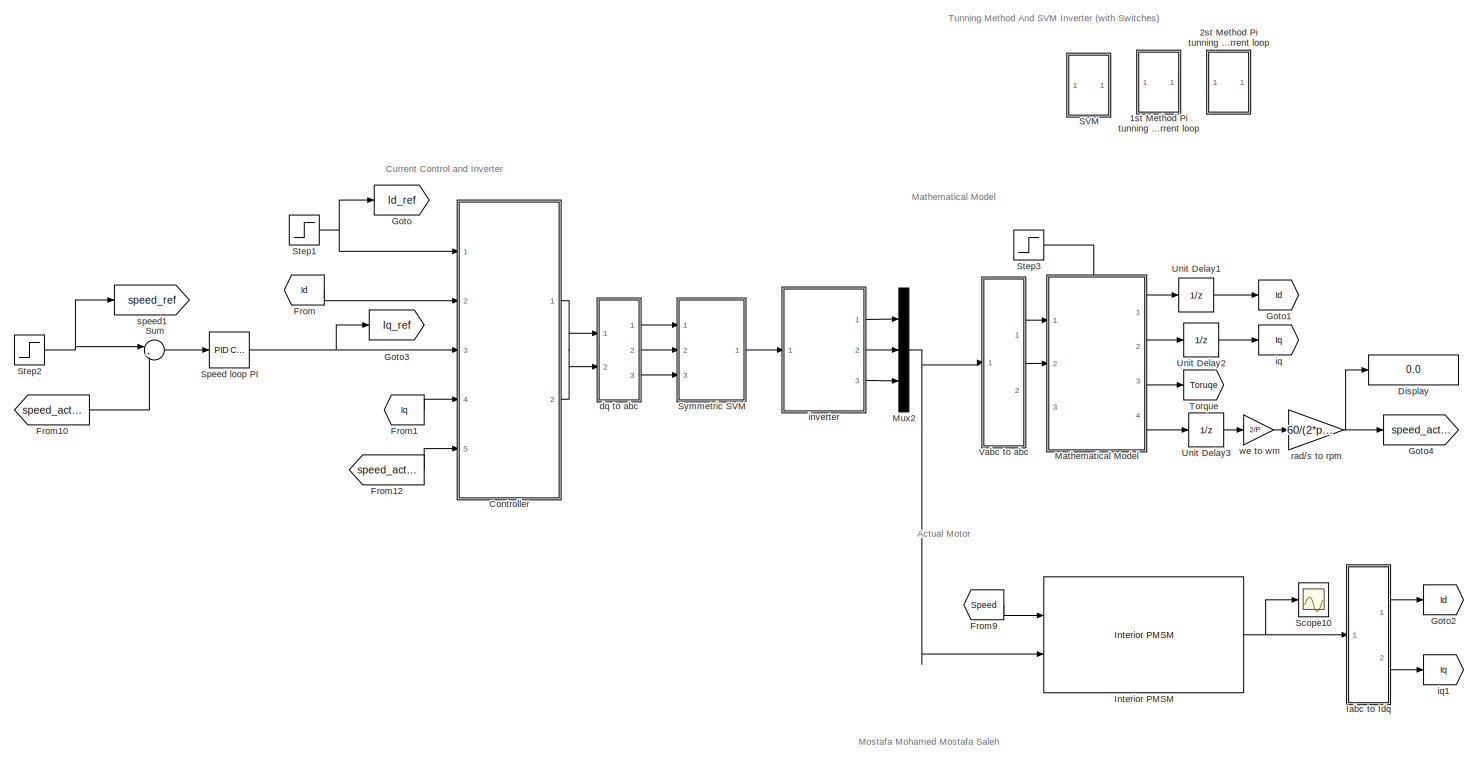
[diagram: root canvas - part 1/2, most of the canvas]
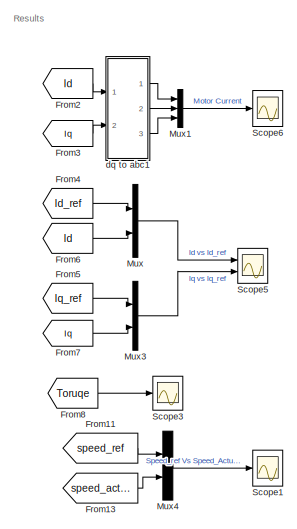
[diagram: root canvas - part 2/2, middle right region]
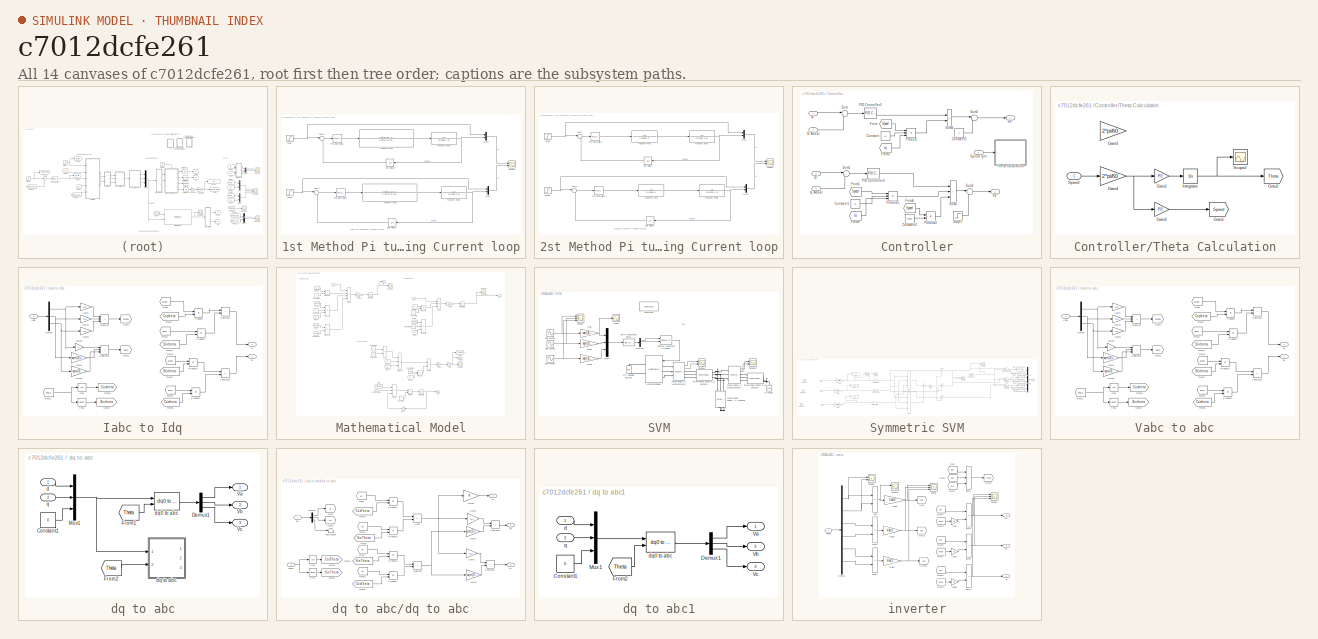
[diagram: thumbnail index - all 14 canvases of the model, root first then tree order]
MODEL slx_c7012dcfe261
KIND model
CONFIG AbsTol = auto
CONFIG EnableMultiTasking = off
CONFIG FixedStep = 1e-6
CONFIG InitFcn = Td=1/5000;\nLd=0.0057;\nLq=0.0125;\nr=1.2;\nP=4;\nLd=0.0125;\nLq=0.0057;\nPhiPM=0.123;\nVdc=700;\nB=0;\nJ=0.0027;\nfs=5000;
CONFIG MaxStep = auto
CONFIG MinStep = auto
CONFIG RelTol = 1e-3
CONFIG SampleTimeConstraint = Unconstrained
CONFIG SolverName = ode3
CONFIG StartTime = 0.0
CONFIG StopTime = 1
BLOCK [SubSystem] 1st Method Pi tunning Current loop
  Commented = on
  Ports = []
  RequestExecContextInheritance = off
BLOCK [Mux] 1st Method Pi tunning Current loop/Mux2
  DisplayOption = bar
  Inputs = 2
  Ports = [2, 1]
BLOCK [Mux] 1st Method Pi tunning Current loop/Mux3
  DisplayOption = bar
  Inputs = 2
  Ports = [2, 1]
BLOCK [Reference] 1st Method Pi tunning Current loop/PID Controller5  REF=pid_lib/PID Controller
  Ports = [1, 1]
  SourceBlock = pid_lib/PID Controller
  SourceProductBaseCode = SL
  SourceType = PID 1dof
BLOCK [Reference] 1st Method Pi tunning Current loop/PID Controller6  REF=pid_lib/PID Controller
  Ports = [1, 1]
  SourceBlock = pid_lib/PID Controller
  SourceProductBaseCode = SL
  SourceType = PID 1dof
BLOCK [Scope] 1st Method Pi tunning Current loop/Scope3
  Floating = off
  NumInputPorts = 2
  Ports = [2]
  ScopeSpecificationString = Simulink.scopes.TimeScopeBlockCfg('CurrentConfiguration', extmgr.ConfigurationSet(extmgr.Configuration('Core','General UI',true,'FigureColor',[1 1 1]),extmgr.Configuration('Core','Source UI',true),extmgr.Configuration('Sources','WiredSimulink',true),extmgr.Configuration('Visuals','Time Domain',true,'SerializedDisplays',{struct('MinYLimReal','0.6934','MaxYLimReal','1.10818','YLabelReal','','MinYLim...<+2587ch>
BLOCK [Step] 1st Method Pi tunning Current loop/Step
  SampleTime = 0
  Time = 0.1
BLOCK [Step] 1st Method Pi tunning Current loop/Step1
  SampleTime = 0
  Time = 0.1
BLOCK [Sum] 1st Method Pi tunning Current loop/Sum2
  Inputs = |+-
  Ports = [2, 1]
BLOCK [Sum] 1st Method Pi tunning Current loop/Sum3
  Inputs = |+-
  Ports = [2, 1]
BLOCK [TransferFcn] 1st Method Pi tunning Current loop/Transfer Fcn1
  Denominator = [(Td^2)/12 Td/2 1]
  Numerator = [(Td^2)/12 -Td/2 1]
BLOCK [TransferFcn] 1st Method Pi tunning Current loop/Transfer Fcn2
  Denominator = [(Td^2)/12 Td/2 1]
  Numerator = [(Td^2)/12 -Td/2 1]
BLOCK [TransferFcn] 1st Method Pi tunning Current loop/Transfer Fcn3
  Denominator = [0.0057 1.2]
BLOCK [TransferFcn] 1st Method Pi tunning Current loop/Transfer Fcn5
  Denominator = [0.0125 1.2]
BLOCK [UnitDelay] 1st Method Pi tunning Current loop/Unit Delay2
  HasFrameUpgradeWarning = on
  NameLocation = top
  SampleTime = -1
BLOCK [UnitDelay] 1st Method Pi tunning Current loop/Unit Delay3
  HasFrameUpgradeWarning = on
  SampleTime = -1
BLOCK [SubSystem] 2st Method Pi tunning Current loop
  Commented = on
  Ports = []
  RequestExecContextInheritance = off
BLOCK [Mux] 2st Method Pi tunning Current loop/Mux1
  DisplayOption = bar
  Inputs = 2
  Ports = [2, 1]
BLOCK [Mux] 2st Method Pi tunning Current loop/Mux4
  DisplayOption = bar
  Inputs = 2
  Ports = [2, 1]
BLOCK [Reference] 2st Method Pi tunning Current loop/PID Controller1  REF=pid_lib/PID Controller
  Ports = [1, 1]
  SourceBlock = pid_lib/PID Controller
  SourceProductBaseCode = SL
  SourceType = PID 1dof
BLOCK [Reference] 2st Method Pi tunning Current loop/PID Controller2  REF=pid_lib/PID Controller
  Ports = [1, 1]
  SourceBlock = pid_lib/PID Controller
  SourceProductBaseCode = SL
  SourceType = PID 1dof
BLOCK [Scope] 2st Method Pi tunning Current loop/Scope1
  Floating = off
  NumInputPorts = 2
  Ports = [2]
  ScopeSpecificationString = Simulink.scopes.TimeScopeBlockCfg('CurrentConfiguration', extmgr.ConfigurationSet(extmgr.Configuration('Core','General UI',true,'FigureColor',[1 1 1]),extmgr.Configuration('Core','Source UI',true),extmgr.Configuration('Sources','WiredSimulink',true,'DataLoggingVariableName','ScopeData12'),extmgr.Configuration('Visuals','Time Domain',true,'SerializedDisplays',{struct('MinYLimReal','0.84359','MaxYLi...<+2630ch>
BLOCK [Step] 2st Method Pi tunning Current loop/Step2
  SampleTime = 0
  Time = 0.1
BLOCK [Step] 2st Method Pi tunning Current loop/Step3
  SampleTime = 0
  Time = 0.1
BLOCK [Sum] 2st Method Pi tunning Current loop/Sum1
  Inputs = |+-
  Ports = [2, 1]
BLOCK [Sum] 2st Method Pi tunning Current loop/Sum4
  Inputs = |+-
  Ports = [2, 1]
BLOCK [TransferFcn] 2st Method Pi tunning Current loop/Transfer Fcn1
  Denominator = [1/5000 1]
BLOCK [TransferFcn] 2st Method Pi tunning Current loop/Transfer Fcn3
  Denominator = [0.0057 1.2]
BLOCK [TransferFcn] 2st Method Pi tunning Current loop/Transfer Fcn5
  Denominator = [0.0125 1.2]
BLOCK [TransferFcn] 2st Method Pi tunning Current loop/Transfer Fcn7
  Denominator = [1/5000 1]
BLOCK [UnitDelay] 2st Method Pi tunning Current loop/Unit Delay1
  HasFrameUpgradeWarning = on
  NameLocation = top
  SampleTime = -1
BLOCK [UnitDelay] 2st Method Pi tunning Current loop/Unit Delay4
  HasFrameUpgradeWarning = on
  SampleTime = -1
BLOCK [SubSystem] Controller
  Ports = [5, 2]
  RequestExecContextInheritance = off
BLOCK [Constant] Controller/Constant
  Value = Lq
BLOCK [Constant] Controller/Constant1
  Value = Ld
BLOCK [Constant] Controller/Constant2
  Value = PhiPM
BLOCK [Constant] Controller/Constant3
  Value = 0
BLOCK [From] Controller/From
  GotoTag = Speed
  TagVisibility = global
BLOCK [From] Controller/From1
  GotoTag = Speed
  TagVisibility = global
BLOCK [From] Controller/From3
  GotoTag = Iq
  TagVisibility = global
BLOCK [From] Controller/From5
  GotoTag = Id
BLOCK [From] Controller/From6
  GotoTag = Speed
  TagVisibility = global
BLOCK [Inport] Controller/Id Actual 
  Port = 2
BLOCK [Inport] Controller/Id*
BLOCK [Inport] Controller/Iq Actual 
  Port = 4
BLOCK [Inport] Controller/Iq*
  Port = 3
BLOCK [Reference] Controller/PID Controller2  REF=pid_lib/PID Controller
  Ports = [1, 1]
  SourceBlock = pid_lib/PID Controller
  SourceProductBaseCode = SL
  SourceType = PID 1dof
BLOCK [Reference] Controller/PID Controller4  REF=pid_lib/PID Controller
  Ports = [1, 1]
  SourceBlock = pid_lib/PID Controller
  SourceProductBaseCode = SL
  SourceType = PID 1dof
BLOCK [Product] Controller/Product
  Inputs = 3
  Ports = [3, 1]
BLOCK [Product] Controller/Product1
  Inputs = 3
  Ports = [3, 1]
BLOCK [Product] Controller/Product2
  Ports = [2, 1]
BLOCK [Inport] Controller/Speed rpm
  Port = 5
BLOCK [Step] Controller/Step1
  After = 0
  SampleTime = 0
  Time = 0.3
BLOCK [Sum] Controller/Sum
  Inputs = |+-
  Ports = [2, 1]
BLOCK [Sum] Controller/Sum1
  Inputs = |+-
  Ports = [2, 1]
BLOCK [Sum] Controller/Sum2
  Inputs = |++
  Ports = [2, 1]
BLOCK [Sum] Controller/Sum3
  Inputs = |++
  Ports = [2, 1]
BLOCK [Sum] Controller/Sum4
  IconShape = rectangular
  Inputs = +-
  Ports = [2, 1]
BLOCK [Sum] Controller/Sum5
  IconShape = rectangular
  Inputs = +++
  Ports = [3, 1]
BLOCK [SubSystem] Controller/Theta Calculation
  Ports = [1]
  RequestExecContextInheritance = off
BLOCK [Gain] Controller/Theta Calculation/Gain1
  Gain = P/2
BLOCK [Gain] Controller/Theta Calculation/Gain2
  Gain = P/2
BLOCK [Gain] Controller/Theta Calculation/Gain3
  Gain = 2*pi/60
BLOCK [Gain] Controller/Theta Calculation/Gain4
  Gain = 2*pi/60
BLOCK [Goto] Controller/Theta Calculation/Goto1
  GotoTag = Speed
  TagVisibility = global
BLOCK [Goto] Controller/Theta Calculation/Goto2
  GotoTag = Theta
  TagVisibility = global
BLOCK [Integrator] Controller/Theta Calculation/Integrator
  Ports = [1, 1]
BLOCK [Scope] Controller/Theta Calculation/Scope2
  Floating = off
  NumInputPorts = 1
  Ports = [1]
  ScopeSpecificationString = Simulink.scopes.TimeScopeBlockCfg('CurrentConfiguration', extmgr.ConfigurationSet(extmgr.Configuration('Core','General UI',true),extmgr.Configuration('Core','Source UI',true),extmgr.Configuration('Sources','WiredSimulink',true,'DataLoggingVariableName','ScopeData4'),extmgr.Configuration('Visuals','Time Domain',true,'SerializedDisplays',{struct('MinYLimReal','123.44494','MaxYLimReal','123.85611','Y...<+1459ch>
BLOCK [Inport] Controller/Theta Calculation/Speed
BLOCK [Outport] Controller/Vd*
BLOCK [Outport] Controller/Vq*
  Port = 2
BLOCK [Display] Display
  Decimation = 1
  Ports = [1]
BLOCK [From] From
  GotoTag = Id
BLOCK [From] From1
  GotoTag = Iq
  TagVisibility = global
BLOCK [From] From10
  GotoTag = speed_actual
BLOCK [From] From11
  GotoTag = speed_ref
  TagVisibility = global
BLOCK [From] From12
  GotoTag = speed_actual
BLOCK [From] From13
  GotoTag = speed_actual
BLOCK [From] From2
  GotoTag = Id
BLOCK [From] From3
  GotoTag = Iq
  TagVisibility = global
BLOCK [From] From4
  GotoTag = Id_ref
BLOCK [From] From5
  GotoTag = Iq_ref
BLOCK [From] From6
  GotoTag = Id
BLOCK [From] From7
  GotoTag = Iq
  TagVisibility = global
BLOCK [From] From8
  GotoTag = Toruqe
  TagVisibility = global
BLOCK [From] From9
  Commented = on
  GotoTag = Speed
  TagVisibility = global
BLOCK [Goto] Goto
  GotoTag = Id_ref
BLOCK [Goto] Goto1
  GotoTag = Id
BLOCK [Goto] Goto2
  Commented = on
  GotoTag = Id
BLOCK [Goto] Goto3
  GotoTag = Iq_ref
BLOCK [Goto] Goto4
  GotoTag = speed_actual
BLOCK [SubSystem] Iabc to Idq
  Commented = on
  Ports = [1, 2]
  RequestExecContextInheritance = off
BLOCK [Trigonometry] Iabc to Idq/Cos
  Operator = cos
  Ports = [1, 1]
BLOCK [Trigonometry] Iabc to Idq/Cos1
  Ports = [1, 1]
BLOCK [Demux] Iabc to Idq/Demux
  Outputs = 3
  Ports = [1, 3]
BLOCK [From] Iabc to Idq/From
  GotoTag = alpha
BLOCK [From] Iabc to Idq/From1
  GotoTag = Theta
  TagVisibility = global
BLOCK [From] Iabc to Idq/From2
  GotoTag = beta
BLOCK [From] Iabc to Idq/From3
  GotoTag = alpha
BLOCK [From] Iabc to Idq/From4
  GotoTag = beta
BLOCK [From] Iabc to Idq/From5
  GotoTag = Costheta
BLOCK [From] Iabc to Idq/From6
  GotoTag = Sintheta
BLOCK [From] Iabc to Idq/From7
  GotoTag = Costheta
BLOCK [From] Iabc to Idq/From8
  GotoTag = Sintheta
BLOCK [Gain] Iabc to Idq/Gain
  Gain = 2/3
BLOCK [Gain] Iabc to Idq/Gain1
  Gain = -1/3
BLOCK [Gain] Iabc to Idq/Gain2
  Gain = -1/3
BLOCK [Gain] Iabc to Idq/Gain3
  Gain = 0
BLOCK [Gain] Iabc to Idq/Gain4
  Gain = sqrt(3)/3
BLOCK [Gain] Iabc to Idq/Gain5
  Gain = -sqrt(3)/3
BLOCK [Goto] Iabc to Idq/Goto
  GotoTag = alpha
BLOCK [Goto] Iabc to Idq/Goto1
  GotoTag = beta
BLOCK [Goto] Iabc to Idq/Goto2
  GotoTag = Sintheta
BLOCK [Goto] Iabc to Idq/Goto3
  GotoTag = Costheta
BLOCK [Inport] Iabc to Idq/Iabc
BLOCK [Outport] Iabc to Idq/Id
BLOCK [Outport] Iabc to Idq/Iq
  Port = 2
BLOCK [Product] Iabc to Idq/Product
  Ports = [2, 1]
BLOCK [Product] Iabc to Idq/Product1
  Ports = [2, 1]
BLOCK [Product] Iabc to Idq/Product2
  Ports = [2, 1]
BLOCK [Product] Iabc to Idq/Product3
  Ports = [2, 1]
BLOCK [Sum] Iabc to Idq/Subtract
  IconShape = rectangular
  Inputs = +++
  Ports = [3, 1]
BLOCK [Sum] Iabc to Idq/Subtract1
  IconShape = rectangular
  Inputs = +++
  Ports = [3, 1]
BLOCK [Sum] Iabc to Idq/Subtract2
  IconShape = rectangular
  Ports = [2, 1]
BLOCK [Sum] Iabc to Idq/Subtract3
  IconShape = rectangular
  Inputs = -+
  Ports = [2, 1]
BLOCK [Reference] Interior PMSM  REF=autolibpmsminterior/Interior PMSM
  Commented = on
  Ports = [2, 3]
  SourceBlock = autolibpmsminterior/Interior PMSM
  SourceProductBaseCode = PW,MT,VE,VP
  SourceType = Interior PMSM
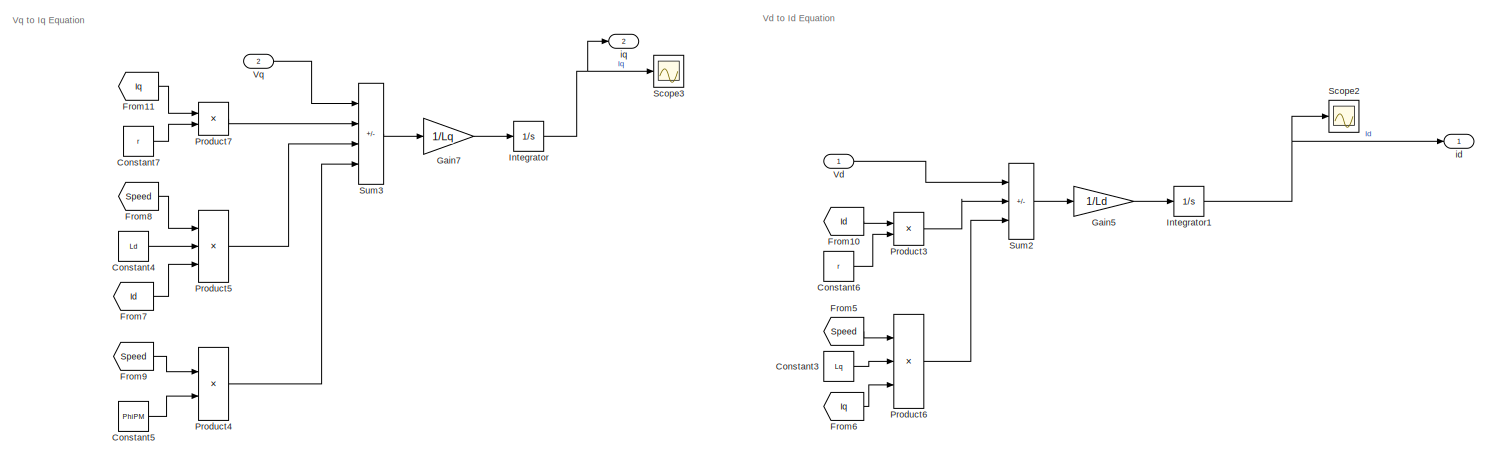
[diagram: Mathematical Model - part 1/2, full width, top band]
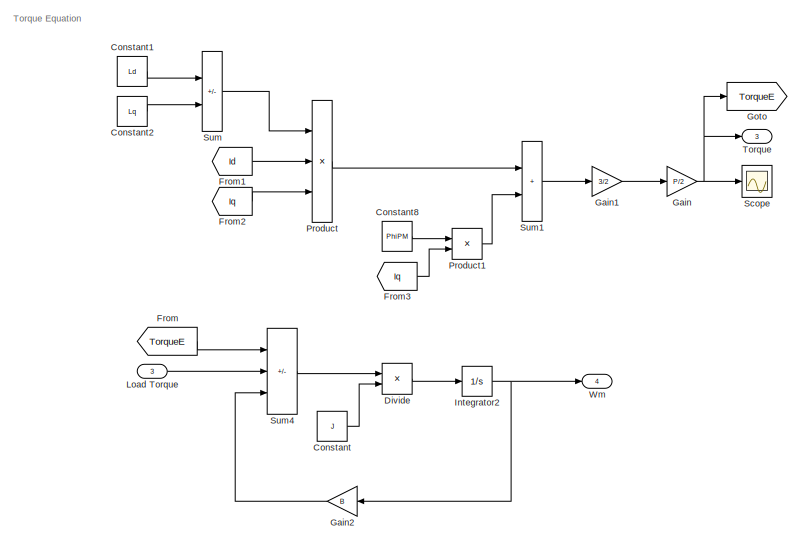
[diagram: Mathematical Model - part 2/2, bottom center region]
BLOCK [SubSystem] Mathematical Model
  PortSchema = {"entries":[{"content":{"sides":[{"content":{"connectorIds":["In1","In2"]},"type":"ConnectorPlacement.EquallySpacedRectSide","uuid":"051f3cf9-9be1-4106-b38d-66cc7393fb99"},{"content":{"connectorIds":["Out1","Out2","Out3","Out4"],"side":"RIGHT"},"type":"ConnectorPlacement.EquallySpacedRectSide","uuid":"0ae6f8d8-defd-4982-a857-4d094ecd69f7"},{"content":{"connectorIds":["In3"],"side":"TOP"},"type":"C...<+272ch>
  Ports = [3, 4]
  RequestExecContextInheritance = off
BLOCK [Constant] Mathematical Model/Constant
  Value = J
BLOCK [Constant] Mathematical Model/Constant1
  Value = Ld
BLOCK [Constant] Mathematical Model/Constant2
  Value = Lq
BLOCK [Constant] Mathematical Model/Constant3
  Value = Lq
BLOCK [Constant] Mathematical Model/Constant4
  Value = Ld
BLOCK [Constant] Mathematical Model/Constant5
  Value = PhiPM
BLOCK [Constant] Mathematical Model/Constant6
  Value = r
BLOCK [Constant] Mathematical Model/Constant7
  Value = r
BLOCK [Constant] Mathematical Model/Constant8
  Value = PhiPM
BLOCK [Product] Mathematical Model/Divide
  Inputs = */
  Ports = [2, 1]
BLOCK [From] Mathematical Model/From
  GotoTag = TorqueE
BLOCK [From] Mathematical Model/From1
  GotoTag = Id
BLOCK [From] Mathematical Model/From10
  GotoTag = Id
BLOCK [From] Mathematical Model/From11
  GotoTag = Iq
  TagVisibility = global
BLOCK [From] Mathematical Model/From2
  GotoTag = Iq
  TagVisibility = global
BLOCK [From] Mathematical Model/From3
  GotoTag = Iq
  TagVisibility = global
BLOCK [From] Mathematical Model/From5
  GotoTag = Speed
  TagVisibility = global
BLOCK [From] Mathematical Model/From6
  GotoTag = Iq
  TagVisibility = global
BLOCK [From] Mathematical Model/From7
  GotoTag = Id
BLOCK [From] Mathematical Model/From8
  GotoTag = Speed
  TagVisibility = global
BLOCK [From] Mathematical Model/From9
  GotoTag = Speed
  TagVisibility = global
BLOCK [Gain] Mathematical Model/Gain
  Gain = P/2
BLOCK [Gain] Mathematical Model/Gain1
  Gain = 3/2
BLOCK [Gain] Mathematical Model/Gain2
  Gain = B
  NameLocation = top
BLOCK [Gain] Mathematical Model/Gain5
  Gain = 1/Ld
BLOCK [Gain] Mathematical Model/Gain7
  Gain = 1/Lq
BLOCK [Goto] Mathematical Model/Goto
  GotoTag = TorqueE
BLOCK [Integrator] Mathematical Model/Integrator
  Ports = [1, 1]
BLOCK [Integrator] Mathematical Model/Integrator1
  Ports = [1, 1]
BLOCK [Integrator] Mathematical Model/Integrator2
  Ports = [1, 1]
BLOCK [Inport] Mathematical Model/Load Torque
  Port = 3
BLOCK [Product] Mathematical Model/Product
  Inputs = 3
  Ports = [3, 1]
BLOCK [Product] Mathematical Model/Product1
  Ports = [2, 1]
BLOCK [Product] Mathematical Model/Product3
  Ports = [2, 1]
BLOCK [Product] Mathematical Model/Product4
  Ports = [2, 1]
BLOCK [Product] Mathematical Model/Product5
  Inputs = 3
  Ports = [3, 1]
BLOCK [Product] Mathematical Model/Product6
  Inputs = 3
  Ports = [3, 1]
BLOCK [Product] Mathematical Model/Product7
  Ports = [2, 1]
BLOCK [Scope] Mathematical Model/Scope
  Floating = off
  NumInputPorts = 1
  Ports = [1]
  ScopeSpecificationString = Simulink.scopes.TimeScopeBlockCfg('CurrentConfiguration', extmgr.ConfigurationSet(extmgr.Configuration('Core','General UI',true),extmgr.Configuration('Core','Source UI',true),extmgr.Configuration('Sources','WiredSimulink',true,'DataLoggingVariableName','ScopeData1'),extmgr.Configuration('Visuals','Time Domain',true,'SerializedDisplays',{struct('MinYLimReal','1.64769','MaxYLimReal','1.74749','YLabe...<+1438ch>
BLOCK [Scope] Mathematical Model/Scope2
  Floating = off
  NumInputPorts = 1
  Ports = [1]
  ScopeSpecificationString = Simulink.scopes.TimeScopeBlockCfg('CurrentConfiguration', extmgr.ConfigurationSet(extmgr.Configuration('Core','General UI',true,'FigureColor',[1 1 1]),extmgr.Configuration('Core','Source UI',true),extmgr.Configuration('Sources','WiredSimulink',true,'DataLoggingVariableName','ScopeData5'),extmgr.Configuration('Visuals','Time Domain',true,'SerializedDisplays',{struct('MinYLimReal','-37.51698','MaxYL...<+1564ch>
BLOCK [Scope] Mathematical Model/Scope3
  Floating = off
  NumInputPorts = 1
  Ports = [1]
  ScopeSpecificationString = Simulink.scopes.TimeScopeBlockCfg('CurrentConfiguration', extmgr.ConfigurationSet(extmgr.Configuration('Core','General UI',true,'FigureColor',[1 1 1]),extmgr.Configuration('Core','Source UI',true),extmgr.Configuration('Sources','WiredSimulink',true,'DataLoggingVariableName','ScopeData6'),extmgr.Configuration('Visuals','Time Domain',true,'SerializedDisplays',{struct('MinYLimReal','-50.73465','MaxYL...<+1562ch>
BLOCK [Sum] Mathematical Model/Sum
  IconShape = rectangular
  Inputs = +-
  Ports = [2, 1]
BLOCK [Sum] Mathematical Model/Sum1
  IconShape = rectangular
  Ports = [2, 1]
BLOCK [Sum] Mathematical Model/Sum2
  IconShape = rectangular
  Inputs = +-+
  Ports = [3, 1]
BLOCK [Sum] Mathematical Model/Sum3
  IconShape = rectangular
  Inputs = +---
  Ports = [4, 1]
BLOCK [Sum] Mathematical Model/Sum4
  IconShape = rectangular
  Inputs = +--
  Ports = [3, 1]
BLOCK [Outport] Mathematical Model/Torque
  Port = 3
BLOCK [Inport] Mathematical Model/Vd
BLOCK [Inport] Mathematical Model/Vq
  Port = 2
BLOCK [Outport] Mathematical Model/Wm
  Port = 4
BLOCK [Outport] Mathematical Model/id
BLOCK [Outport] Mathematical Model/iq
  Port = 2
BLOCK [Mux] Mux
  DisplayOption = bar
  Inputs = 2
  Ports = [2, 1]
BLOCK [Mux] Mux1
  DisplayOption = bar
  Inputs = 3
  Ports = [3, 1]
BLOCK [Mux] Mux2
  DisplayOption = bar
  Inputs = 3
  Ports = [3, 1]
BLOCK [Mux] Mux3
  DisplayOption = bar
  Inputs = 2
  Ports = [2, 1]
BLOCK [Mux] Mux4
  DisplayOption = bar
  Inputs = 2
  Ports = [2, 1]
BLOCK [SubSystem] SVM
  Commented = on
  Ports = []
  RequestExecContextInheritance = off
BLOCK [Reference] SVM/DC Voltage Source1  REF=spsDCVoltageSourceLib/DC Voltage Source
  NameLocation = right
  Ports = [0, 0, 0, 0, 0, 1, 1]
  SourceBlock = spsDCVoltageSourceLib/DC Voltage Source
  SourceProductBaseCode = PS
  SourceType = DC Voltage Source
BLOCK [Demux] SVM/Demux1
  Outputs = 3
  Ports = [1, 3]
BLOCK [Gain] SVM/Gain
  Gain = sqrt(3)/Vdc
BLOCK [Gain] SVM/Gain1
  Gain = sqrt(3)/Vdc
BLOCK [Gain] SVM/Gain2
  Gain = sqrt(3)/Vdc
BLOCK [Reference] SVM/Ground1  REF=spsGroundLib/Ground
  NameLocation = right
  Ports = [0, 0, 0, 0, 0, 1]
  SourceBlock = spsGroundLib/Ground
  SourceProductBaseCode = PS
  SourceType = Ground
BLOCK [Mux] SVM/Mux1
  DisplayOption = bar
  Inputs = 3
  Ports = [3, 1]
BLOCK [Reference] SVM/SVPWM Generator (2-Level)1  REF=spsSVPWMGenerator2LevelLib/SVPWM Generator
(2-Level)
  Ports = [2, 1]
  SourceBlock = spsSVPWMGenerator2LevelLib/SVPWM Generator\n(2-Level)
  SourceProductBaseCode = PS
  SourceType = SVPWM Generator (2-Level)
BLOCK [Scope] SVM/Scope
  Floating = off
  NumInputPorts = 1
  Ports = [1]
  ScopeSpecificationString = Simulink.scopes.TimeScopeBlockCfg('CurrentConfiguration', extmgr.ConfigurationSet(extmgr.Configuration('Core','General UI',true),extmgr.Configuration('Core','Source UI',true),extmgr.Configuration('Sources','WiredSimulink',true,'DataLoggingVariableName','ScopeData1'),extmgr.Configuration('Visuals','Time Domain',true,'SerializedDisplays',{struct('MinYLimReal','-1.00049','MaxYLimReal','1.00049','YLab...<+1409ch>
BLOCK [Scope] SVM/Scope10
  Floating = off
  NumInputPorts = 2
  Ports = [2]
  ScopeSpecificationString = Simulink.scopes.TimeScopeBlockCfg('CurrentConfiguration', extmgr.ConfigurationSet(extmgr.Configuration('Core','General UI',true),extmgr.Configuration('Core','Source UI',true),extmgr.Configuration('Sources','WiredSimulink',true,'DataLoggingVariableName','ScopeData2'),extmgr.Configuration('Visuals','Time Domain',true,'SerializedDisplays',{struct('MinYLimReal','-461.95738','MaxYLimReal','396.20532','...<+2245ch>
BLOCK [Scope] SVM/Scope8
  Floating = off
  NumInputPorts = 3
  Ports = [3]
  ScopeSpecificationString = Simulink.scopes.TimeScopeBlockCfg('CurrentConfiguration', extmgr.ConfigurationSet(extmgr.Configuration('Core','General UI',true,'FigureColor',[1 1 1]),extmgr.Configuration('Core','Source UI',true),extmgr.Configuration('Sources','WiredSimulink',true,'DataLoggingVariableName','ScopeData3'),extmgr.Configuration('Visuals','Time Domain',true,'SerializedDisplays',{struct('MinYLimReal','-312.5','MaxYLimR...<+1842ch>
BLOCK [Scope] SVM/Scope9
  Floating = off
  NumInputPorts = 2
  Ports = [2]
  ScopeSpecificationString = Simulink.scopes.TimeScopeBlockCfg('CurrentConfiguration', extmgr.ConfigurationSet(extmgr.Configuration('Core','General UI',true),extmgr.Configuration('Core','Source UI',true),extmgr.Configuration('Sources','WiredSimulink',true,'DataLoggingVariableName','ScopeData4'),extmgr.Configuration('Visuals','Time Domain',true,'SerializedDisplays',{struct('MinYLimReal','326.82554','MaxYLimReal','339.19785','Y...<+2242ch>
BLOCK [Sin] SVM/Sine Wave1
  Amplitude = 250
  Frequency = 100*pi
  Ports = [0, 1]
  SampleTime = 0
BLOCK [Sin] SVM/Sine Wave2
  Amplitude = 250
  Frequency = 100*pi
  Phase = -2*pi/3
  Ports = [0, 1]
  SampleTime = 0
BLOCK [Sin] SVM/Sine Wave3
  Amplitude = 250
  Frequency = 100*pi
  Phase = 2*pi/3
  Ports = [0, 1]
  SampleTime = 0
BLOCK [Reference] SVM/Three-Phase Series RLC Branch3  REF=spsThreePhaseSeriesRLCBranchLib/Three-Phase
Series RLC Branch
  AttributesFormatString = \n
  Ports = [0, 0, 0, 0, 0, 3, 3]
  SourceBlock = spsThreePhaseSeriesRLCBranchLib/Three-Phase\nSeries RLC Branch
  SourceProductBaseCode = PS
  SourceType = Three-Phase Series RLC Branch
BLOCK [Reference] SVM/Three-Phase Series RLC Branch4  REF=spsThreePhaseSeriesRLCBranchLib/Three-Phase
Series RLC Branch
  AttributesFormatString = \n
  Ports = [0, 0, 0, 0, 0, 3, 3]
  SourceBlock = spsThreePhaseSeriesRLCBranchLib/Three-Phase\nSeries RLC Branch
  SourceProductBaseCode = PS
  SourceType = Three-Phase Series RLC Branch
BLOCK [Reference] SVM/Three-Phase Series RLC Branch5  REF=spsThreePhaseSeriesRLCBranchLib/Three-Phase
Series RLC Branch
  AttributesFormatString = \n
  NameLocation = left
  Ports = [0, 0, 0, 0, 0, 3, 3]
  SourceBlock = spsThreePhaseSeriesRLCBranchLib/Three-Phase\nSeries RLC Branch
  SourceProductBaseCode = PS
  SourceType = Three-Phase Series RLC Branch
BLOCK [Reference] SVM/Three-Phase V-I Measurement2  REF=spsThreePhaseVIMeasurementLib/Three-Phase
V-I Measurement
  Ports = [0, 2, 0, 0, 0, 3, 3]
  SourceBlock = spsThreePhaseVIMeasurementLib/Three-Phase\nV-I Measurement
  SourceProductBaseCode = PS
  SourceType = Three-Phase VI Measurement
BLOCK [Reference] SVM/Three-Phase V-I Measurement3  REF=spsThreePhaseVIMeasurementLib/Three-Phase
V-I Measurement
  Ports = [0, 2, 0, 0, 0, 3, 3]
  SourceBlock = spsThreePhaseVIMeasurementLib/Three-Phase\nV-I Measurement
  SourceProductBaseCode = PS
  SourceType = Three-Phase VI Measurement
BLOCK [Reference] SVM/Universal Bridge1  REF=spsUniversalBridgeLib/Universal Bridge
  Ports = [1, 0, 0, 0, 0, 3, 2]
  SourceBlock = spsUniversalBridgeLib/Universal Bridge
  SourceProductBaseCode = PS
  SourceType = Universal Bridge
BLOCK [Reference] SVM/abc to Alpha-Beta-Zero1  REF=spsabctoAlphaBetaZeroLib/abc to
Alpha-Beta-Zero
  Ports = [1, 1]
  SourceBlock = spsabctoAlphaBetaZeroLib/abc to\nAlpha-Beta-Zero
  SourceProductBaseCode = PS
  SourceType = abc to Alpha-Beta-Zero Transformation
BLOCK [Reference] SVM/powergui  REF=spspowerguiLib/powergui
  Ports = []
  Priority = 1
  SourceBlock = spspowerguiLib/powergui
  SourceProductBaseCode = PS
  SourceType = PSB option menu block
BLOCK [Scope] Scope1
  Floating = off
  NumInputPorts = 1
  Ports = [1]
  ScopeSpecificationString = Simulink.scopes.TimeScopeBlockCfg('CurrentConfiguration', extmgr.ConfigurationSet(extmgr.Configuration('Core','General UI',true,'FigureColor',[1 1 1]),extmgr.Configuration('Core','Source UI',true),extmgr.Configuration('Sources','WiredSimulink',true,'DataLoggingVariableName','ScopeData1'),extmgr.Configuration('Visuals','Time Domain',true,'SerializedDisplays',{struct('MinYLimReal','-125.16063','MaxY...<+1855ch>
BLOCK [Scope] Scope10
  Commented = on
  Floating = off
  NumInputPorts = 1
  Ports = [1]
  ScopeSpecificationString = Simulink.scopes.TimeScopeBlockCfg('CurrentConfiguration', extmgr.ConfigurationSet(extmgr.Configuration('Core','General UI',true,'FigureColor',[1 1 1]),extmgr.Configuration('Core','Source UI',true),extmgr.Configuration('Sources','WiredSimulink',true,'DataLoggingVariableName','ScopeData3'),extmgr.Configuration('Visuals','Time Domain',true,'SerializedDisplays',{struct('MinYLimReal','-1.18532','MaxYLi...<+1580ch>
BLOCK [Scope] Scope3
  Floating = off
  NumInputPorts = 1
  Ports = [1]
  ScopeSpecificationString = Simulink.scopes.TimeScopeBlockCfg('CurrentConfiguration', extmgr.ConfigurationSet(extmgr.Configuration('Core','General UI',true,'FigureColor',[1 1 1]),extmgr.Configuration('Core','Source UI',true),extmgr.Configuration('Sources','WiredSimulink',true,'DataLoggingVariableName','ScopeData7'),extmgr.Configuration('Visuals','Time Domain',true,'SerializedDisplays',{struct('MinYLimReal','-0.94057','MaxYLi...<+1558ch>
BLOCK [Scope] Scope5
  Floating = off
  NumInputPorts = 2
  Ports = [2]
  ScopeSpecificationString = Simulink.scopes.TimeScopeBlockCfg('CurrentConfiguration', extmgr.ConfigurationSet(extmgr.Configuration('Core','General UI',true,'FigureColor',[1 1 1]),extmgr.Configuration('Core','Source UI',true),extmgr.Configuration('Sources','WiredSimulink',true,'DataLoggingVariableName','ScopeData13'),extmgr.Configuration('Visuals','Time Domain',true,'SerializedDisplays',{struct('MinYLimReal','-1.01215','MaxYL...<+2711ch>
BLOCK [Scope] Scope6
  Floating = off
  NumInputPorts = 1
  Ports = [1]
  ScopeSpecificationString = Simulink.scopes.TimeScopeBlockCfg('CurrentConfiguration', extmgr.ConfigurationSet(extmgr.Configuration('Core','General UI',true,'FigureColor',[1 1 1]),extmgr.Configuration('Core','Source UI',true),extmgr.Configuration('Sources','WiredSimulink',true,'DataLoggingVariableName','ScopeData2'),extmgr.Configuration('Visuals','Time Domain',true,'SerializedDisplays',{struct('MinYLimReal','-6.6026','MaxYLim...<+1771ch>
BLOCK [Reference] Speed loop PI  REF=pid_lib/PID Controller
  Ports = [1, 1]
  SourceBlock = pid_lib/PID Controller
  SourceProductBaseCode = SL
  SourceType = PID 1dof
BLOCK [Step] Step1
  After = 0
  SampleTime = 0
  Time = 0.2
BLOCK [Step] Step2
  After = 1000
  SampleTime = 0
  Time = 0.2
BLOCK [Step] Step3
  After = 5
  SampleTime = 0
  Time = 0.6
BLOCK [Sum] Sum
  Inputs = |+-
  Ports = [2, 1]
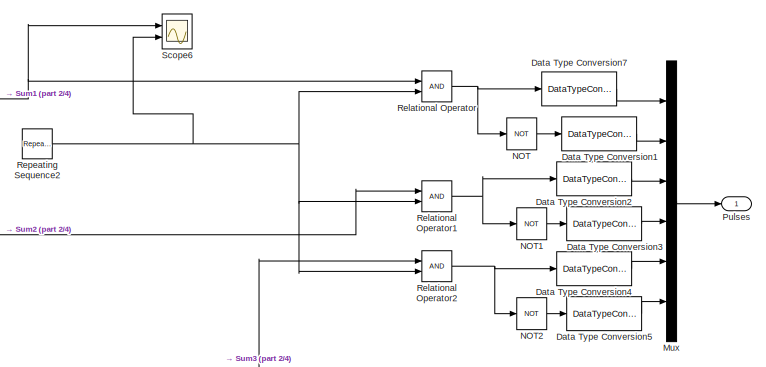
[diagram: Symmetric SVM - part 1/4, top right region]
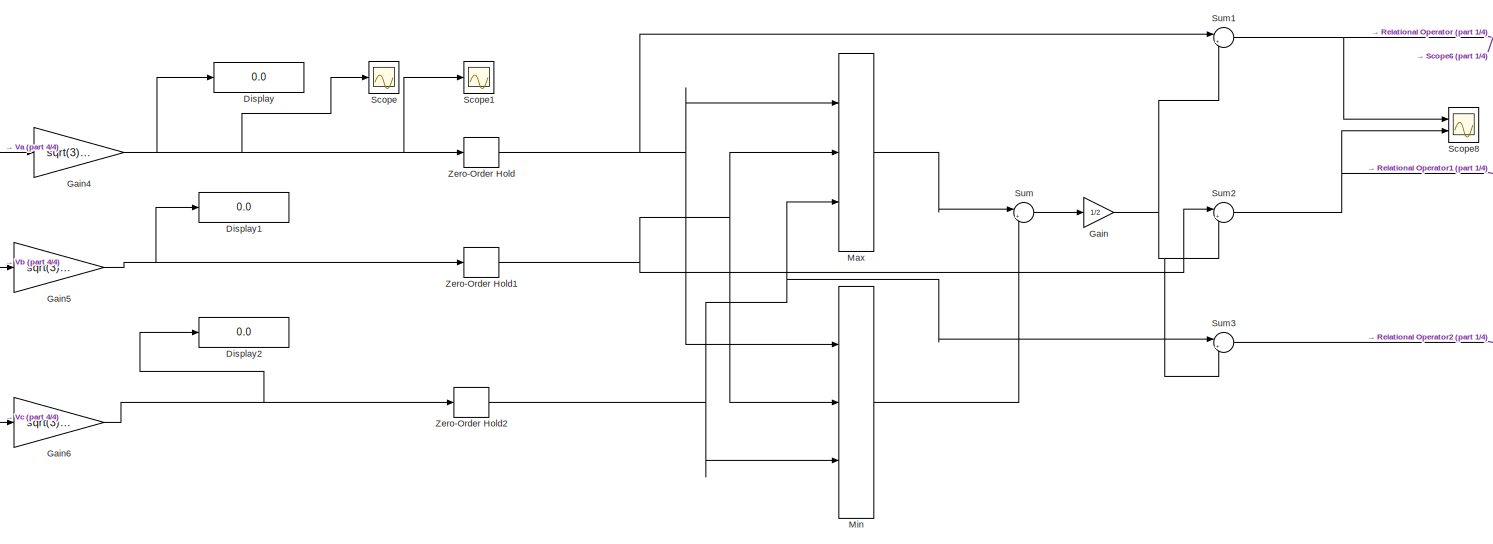
[diagram: Symmetric SVM - part 2/4, center side, full height]
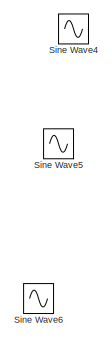
[diagram: Symmetric SVM - part 3/4, middle left region]
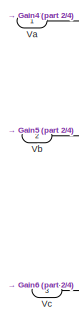
[diagram: Symmetric SVM - part 4/4, middle left region]
BLOCK [SubSystem] Symmetric SVM
  Ports = [3, 1]
  RequestExecContextInheritance = off
BLOCK [DataTypeConversion] Symmetric SVM/Data Type Conversion1
  RndMeth = Floor
  SaturateOnIntegerOverflow = off
BLOCK [DataTypeConversion] Symmetric SVM/Data Type Conversion2
  RndMeth = Floor
  SaturateOnIntegerOverflow = off
BLOCK [DataTypeConversion] Symmetric SVM/Data Type Conversion3
  RndMeth = Floor
  SaturateOnIntegerOverflow = off
BLOCK [DataTypeConversion] Symmetric SVM/Data Type Conversion4
  RndMeth = Floor
  SaturateOnIntegerOverflow = off
BLOCK [DataTypeConversion] Symmetric SVM/Data Type Conversion5
  RndMeth = Floor
  SaturateOnIntegerOverflow = off
BLOCK [DataTypeConversion] Symmetric SVM/Data Type Conversion7
  RndMeth = Floor
  SaturateOnIntegerOverflow = off
BLOCK [Display] Symmetric SVM/Display
  Decimation = 1
  Ports = [1]
BLOCK [Display] Symmetric SVM/Display1
  Decimation = 1
  Ports = [1]
BLOCK [Display] Symmetric SVM/Display2
  Decimation = 1
  Ports = [1]
BLOCK [Gain] Symmetric SVM/Gain
  Gain = 1/2
BLOCK [Gain] Symmetric SVM/Gain4
  Gain = sqrt(3)/Vdc
BLOCK [Gain] Symmetric SVM/Gain5
  Gain = sqrt(3)/Vdc
BLOCK [Gain] Symmetric SVM/Gain6
  Gain = sqrt(3)/Vdc
BLOCK [MinMax] Symmetric SVM/Max
  Function = max
  Inputs = 3
  Ports = [3, 1]
BLOCK [MinMax] Symmetric SVM/Min
  Inputs = 3
  Ports = [3, 1]
BLOCK [Mux] Symmetric SVM/Mux
  DisplayOption = bar
  Inputs = 6
  Ports = [6, 1]
BLOCK [Logic] Symmetric SVM/NOT
  AllPortsSameDT = off
  IconShape = distinctive
  Operator = NOT
  OutDataTypeStr = boolean
  Ports = [1, 1]
BLOCK [Logic] Symmetric SVM/NOT1
  AllPortsSameDT = off
  IconShape = distinctive
  Operator = NOT
  OutDataTypeStr = boolean
  Ports = [1, 1]
BLOCK [Logic] Symmetric SVM/NOT2
  AllPortsSameDT = off
  IconShape = distinctive
  Operator = NOT
  OutDataTypeStr = boolean
  Ports = [1, 1]
BLOCK [Outport] Symmetric SVM/Pulses
BLOCK [RelationalOperator] Symmetric SVM/Relational Operator
  InputSameDT = off
  OutDataTypeStr = boolean
  Ports = [2, 1]
  RndMeth = Simplest
BLOCK [RelationalOperator] Symmetric SVM/Relational Operator1
  InputSameDT = off
  OutDataTypeStr = boolean
  Ports = [2, 1]
  RndMeth = Simplest
BLOCK [RelationalOperator] Symmetric SVM/Relational Operator2
  InputSameDT = off
  OutDataTypeStr = boolean
  Ports = [2, 1]
  RndMeth = Simplest
BLOCK [Reference] Symmetric SVM/Repeating Sequence2  REF=simulink/Sources/Repeating
Sequence
  Ports = [0, 1]
  SourceBlock = simulink/Sources/Repeating\nSequence
  SourceProductBaseCode = SL
  SourceType = Repeating table
BLOCK [Scope] Symmetric SVM/Scope
  Floating = off
  NumInputPorts = 1
  Ports = [1]
  ScopeSpecificationString = Simulink.scopes.TimeScopeBlockCfg('CurrentConfiguration', extmgr.ConfigurationSet(extmgr.Configuration('Core','General UI',true),extmgr.Configuration('Core','Source UI',true),extmgr.Configuration('Sources','WiredSimulink',true,'DataLoggingVariableName','ScopeData10'),extmgr.Configuration('Visuals','Time Domain',true,'SerializedDisplays',{struct('MinYLimReal','-1.00049','MaxYLimReal','1.00049','YLa...<+1442ch>
BLOCK [Scope] Symmetric SVM/Scope1
  Floating = off
  NumInputPorts = 1
  Ports = [1]
  ScopeSpecificationString = Simulink.scopes.TimeScopeBlockCfg('CurrentConfiguration', extmgr.ConfigurationSet(extmgr.Configuration('Core','General UI',true),extmgr.Configuration('Core','Source UI',true),extmgr.Configuration('Sources','WiredSimulink',true,'DataLoggingVariableName','ScopeData11'),extmgr.Configuration('Visuals','Time Domain',true,'SerializedDisplays',{struct('MinYLimReal','-0.0001','MaxYLimReal','0.00008','YLab...<+1436ch>
BLOCK [Scope] Symmetric SVM/Scope6
  Floating = off
  NumInputPorts = 2
  Ports = [2]
  ScopeSpecificationString = Simulink.scopes.TimeScopeBlockCfg('CurrentConfiguration', extmgr.ConfigurationSet(extmgr.Configuration('Core','General UI',true),extmgr.Configuration('Core','Source UI',true),extmgr.Configuration('Sources','WiredSimulink',true,'DataLoggingVariableName','ScopeData8'),extmgr.Configuration('Visuals','Time Domain',true,'SerializedDisplays',{struct('MinYLimReal','-1.25','MaxYLimReal','1.25','YLabelReal...<+1463ch>
BLOCK [Scope] Symmetric SVM/Scope8
  Floating = off
  NumInputPorts = 2
  Ports = [2]
  ScopeSpecificationString = Simulink.scopes.TimeScopeBlockCfg('CurrentConfiguration', extmgr.ConfigurationSet(extmgr.Configuration('Core','General UI',true),extmgr.Configuration('Core','Source UI',true),extmgr.Configuration('Sources','WiredSimulink',true,'DataLoggingVariableName','ScopeData9'),extmgr.Configuration('Visuals','Time Domain',true,'SerializedDisplays',{struct('MinYLimReal','-3.19104','MaxYLimReal','3.19012','YLab...<+2002ch>
BLOCK [Sin] Symmetric SVM/Sine Wave4
  Amplitude = 250
  Frequency = 100*pi
  Ports = [0, 1]
  SampleTime = 0
BLOCK [Sin] Symmetric SVM/Sine Wave5
  Amplitude = 250
  Frequency = 100*pi
  Phase = -2*pi/3
  Ports = [0, 1]
  SampleTime = 0
BLOCK [Sin] Symmetric SVM/Sine Wave6
  Amplitude = 250
  Frequency = 100*pi
  Phase = 2*pi/3
  Ports = [0, 1]
  SampleTime = 0
BLOCK [Sum] Symmetric SVM/Sum
  Inputs = |++
  Ports = [2, 1]
BLOCK [Sum] Symmetric SVM/Sum1
  Inputs = |+-
  Ports = [2, 1]
BLOCK [Sum] Symmetric SVM/Sum2
  Inputs = |+-
  Ports = [2, 1]
BLOCK [Sum] Symmetric SVM/Sum3
  Inputs = |+-
  Ports = [2, 1]
BLOCK [Inport] Symmetric SVM/Va
BLOCK [Inport] Symmetric SVM/Vb
  Port = 2
BLOCK [Inport] Symmetric SVM/Vc
  Port = 3
BLOCK [ZeroOrderHold] Symmetric SVM/Zero-Order Hold
  SampleTime = 1/fs
BLOCK [ZeroOrderHold] Symmetric SVM/Zero-Order Hold1
  SampleTime = 1/fs
BLOCK [ZeroOrderHold] Symmetric SVM/Zero-Order Hold2
  SampleTime = 1/fs
BLOCK [Goto] Torque
  GotoTag = Toruqe
  TagVisibility = global
BLOCK [UnitDelay] Unit Delay1
  HasFrameUpgradeWarning = on
  SampleTime = -1
BLOCK [UnitDelay] Unit Delay2
  HasFrameUpgradeWarning = on
  SampleTime = -1
BLOCK [UnitDelay] Unit Delay3
  HasFrameUpgradeWarning = on
  SampleTime = -1
BLOCK [SubSystem] Vabc to abc
  Ports = [1, 2]
  RequestExecContextInheritance = off
BLOCK [Trigonometry] Vabc to abc/Cos
  Operator = cos
  Ports = [1, 1]
BLOCK [Trigonometry] Vabc to abc/Cos1
  Ports = [1, 1]
BLOCK [Demux] Vabc to abc/Demux
  Outputs = 3
  Ports = [1, 3]
BLOCK [From] Vabc to abc/From
  GotoTag = alpha
BLOCK [From] Vabc to abc/From1
  GotoTag = Theta
  TagVisibility = global
BLOCK [From] Vabc to abc/From2
  GotoTag = beta
BLOCK [From] Vabc to abc/From3
  GotoTag = alpha
BLOCK [From] Vabc to abc/From4
  GotoTag = beta
BLOCK [From] Vabc to abc/From5
  GotoTag = Costheta
BLOCK [From] Vabc to abc/From6
  GotoTag = Sintheta
BLOCK [From] Vabc to abc/From7
  GotoTag = Costheta
BLOCK [From] Vabc to abc/From8
  GotoTag = Sintheta
BLOCK [Gain] Vabc to abc/Gain
  Gain = 2/3
BLOCK [Gain] Vabc to abc/Gain1
  Gain = -1/3
BLOCK [Gain] Vabc to abc/Gain2
  Gain = -1/3
BLOCK [Gain] Vabc to abc/Gain3
  Gain = 0
BLOCK [Gain] Vabc to abc/Gain4
  Gain = sqrt(3)/3
BLOCK [Gain] Vabc to abc/Gain5
  Gain = -sqrt(3)/3
BLOCK [Goto] Vabc to abc/Goto
  GotoTag = alpha
BLOCK [Goto] Vabc to abc/Goto1
  GotoTag = beta
BLOCK [Goto] Vabc to abc/Goto2
  GotoTag = Sintheta
BLOCK [Goto] Vabc to abc/Goto3
  GotoTag = Costheta
BLOCK [Product] Vabc to abc/Product
  Ports = [2, 1]
BLOCK [Product] Vabc to abc/Product1
  Ports = [2, 1]
BLOCK [Product] Vabc to abc/Product2
  Ports = [2, 1]
BLOCK [Product] Vabc to abc/Product3
  Ports = [2, 1]
BLOCK [Sum] Vabc to abc/Subtract
  IconShape = rectangular
  Inputs = +++
  Ports = [3, 1]
BLOCK [Sum] Vabc to abc/Subtract1
  IconShape = rectangular
  Inputs = +++
  Ports = [3, 1]
BLOCK [Sum] Vabc to abc/Subtract2
  IconShape = rectangular
  Ports = [2, 1]
BLOCK [Sum] Vabc to abc/Subtract3
  IconShape = rectangular
  Inputs = -+
  Ports = [2, 1]
BLOCK [Inport] Vabc to abc/Vabc
BLOCK [Outport] Vabc to abc/vd
BLOCK [Outport] Vabc to abc/vq
  Port = 2
BLOCK [SubSystem] dq to abc
  Ports = [2, 3]
  RequestExecContextInheritance = off
BLOCK [Constant] dq to abc/Constant1
  Value = 0
BLOCK [Demux] dq to abc/Demux1
  Outputs = 3
  Ports = [1, 3]
BLOCK [From] dq to abc/From1
  GotoTag = Theta
  TagVisibility = global
BLOCK [From] dq to abc/From2
  Commented = on
  GotoTag = Theta
  TagVisibility = global
BLOCK [Mux] dq to abc/Mux1
  DisplayOption = bar
  Inputs = 3
  Ports = [3, 1]
BLOCK [Outport] dq to abc/Va
BLOCK [Outport] dq to abc/Vb
  Port = 2
BLOCK [Outport] dq to abc/Vc
  Port = 3
BLOCK [Inport] dq to abc/d
BLOCK [SubSystem] dq to abc/dq to abc
  Commented = on
  Ports = [2, 3]
  RequestExecContextInheritance = off
BLOCK [Sum] dq to abc/dq to abc/Add1
  IconShape = rectangular
  Inputs = +-
  Ports = [2, 1]
BLOCK [Trigonometry] dq to abc/dq to abc/Cos1
  Operator = cos
  Ports = [1, 1]
BLOCK [Demux] dq to abc/dq to abc/Demux
  Outputs = 3
  Ports = [1, 3]
BLOCK [From] dq to abc/dq to abc/From
  GotoTag = vd
BLOCK [From] dq to abc/dq to abc/From1
  GotoTag = vq
BLOCK [From] dq to abc/dq to abc/From2
  GotoTag = CosTheta
BLOCK [From] dq to abc/dq to abc/From3
  GotoTag = CosTheta
BLOCK [From] dq to abc/dq to abc/From4
  GotoTag = SinTheta
BLOCK [From] dq to abc/dq to abc/From5
  GotoTag = SinTheta
BLOCK [From] dq to abc/dq to abc/From6
  GotoTag = vq
BLOCK [From] dq to abc/dq to abc/From7
  GotoTag = vd
BLOCK [Gain] dq to abc/dq to abc/Gain1
  Gain = -1/2
BLOCK [Gain] dq to abc/dq to abc/Gain2
  Gain = -1/2
BLOCK [Gain] dq to abc/dq to abc/Gain3
  Gain = sqrt(3)/2
BLOCK [Gain] dq to abc/dq to abc/Gain4
  Gain = -sqrt(3)/2
BLOCK [Gain] dq to abc/dq to abc/Gain5
BLOCK [Goto] dq to abc/dq to abc/Goto
  GotoTag = vd
BLOCK [Goto] dq to abc/dq to abc/Goto1
  GotoTag = vq
BLOCK [Goto] dq to abc/dq to abc/Goto2
  GotoTag = SinTheta
BLOCK [Goto] dq to abc/dq to abc/Goto3
  GotoTag = CosTheta
BLOCK [Product] dq to abc/dq to abc/Product1
  Ports = [2, 1]
BLOCK [Product] dq to abc/dq to abc/Product2
  Ports = [2, 1]
BLOCK [Product] dq to abc/dq to abc/Product3
  Ports = [2, 1]
BLOCK [Product] dq to abc/dq to abc/Product4
  Ports = [2, 1]
BLOCK [Trigonometry] dq to abc/dq to abc/Sin1
  Ports = [1, 1]
BLOCK [Sum] dq to abc/dq to abc/Subtract
  IconShape = rectangular
  Ports = [2, 1]
BLOCK [Sum] dq to abc/dq to abc/Subtract1
  IconShape = rectangular
  Ports = [2, 1]
BLOCK [Sum] dq to abc/dq to abc/Subtract2
  IconShape = rectangular
  Ports = [2, 1]
BLOCK [Terminator] dq to abc/dq to abc/Terminator
BLOCK [Inport] dq to abc/dq to abc/Theta
  Port = 2
BLOCK [Inport] dq to abc/dq to abc/dq
BLOCK [Outport] dq to abc/dq to abc/va
BLOCK [Outport] dq to abc/dq to abc/vb
  Port = 2
BLOCK [Outport] dq to abc/dq to abc/vc
  Port = 3
BLOCK [Reference] dq to abc/dq0 to abc  REF=spsdq0toabcLib/dq0 to abc
  Ports = [2, 1]
  SourceBlock = spsdq0toabcLib/dq0 to abc
  SourceProductBaseCode = PS
  SourceType = dq0 to abc Transformation
BLOCK [Inport] dq to abc/q
  Port = 2
BLOCK [SubSystem] dq to abc1
  Ports = [2, 3]
  RequestExecContextInheritance = off
BLOCK [Constant] dq to abc1/Constant1
  Value = 0
BLOCK [Demux] dq to abc1/Demux1
  Outputs = 3
  Ports = [1, 3]
BLOCK [From] dq to abc1/From2
  GotoTag = Theta
  TagVisibility = global
BLOCK [Mux] dq to abc1/Mux1
  DisplayOption = bar
  Inputs = 3
  Ports = [3, 1]
BLOCK [Outport] dq to abc1/Va
BLOCK [Outport] dq to abc1/Vb
  Port = 2
BLOCK [Outport] dq to abc1/Vc
  Port = 3
BLOCK [Inport] dq to abc1/d
BLOCK [Reference] dq to abc1/dq0 to abc  REF=spsdq0toabcLib/dq0 to abc
  Ports = [2, 1]
  SourceBlock = spsdq0toabcLib/dq0 to abc
  SourceProductBaseCode = PS
  SourceType = dq0 to abc Transformation
BLOCK [Inport] dq to abc1/q
  Port = 2
BLOCK [SubSystem] inverter
  Ports = [1, 3]
  RequestExecContextInheritance = off
BLOCK [Demux] inverter/Demux
  Outputs = 6
  Ports = [1, 6]
BLOCK [From] inverter/From
  GotoTag = Vao
BLOCK [From] inverter/From1
  GotoTag = Vbo
BLOCK [From] inverter/From2
  GotoTag = Vco
BLOCK [From] inverter/From3
  GotoTag = Vsum
BLOCK [From] inverter/From4
  GotoTag = Vao
BLOCK [From] inverter/From5
  GotoTag = Vbo
BLOCK [From] inverter/From6
  GotoTag = Vco
BLOCK [From] inverter/From7
  GotoTag = Vsum
BLOCK [From] inverter/From9
  GotoTag = Vsum
BLOCK [Gain] inverter/Gain
  Gain = 1/3
BLOCK [Gain] inverter/Gain1
  Gain = 1/3
BLOCK [Gain] inverter/Gain2
  Gain = 1/3
BLOCK [Gain] inverter/Gain3
  Gain = Vdc/2
BLOCK [Gain] inverter/Gain4
  Gain = Vdc/2
BLOCK [Gain] inverter/Gain6
  Gain = Vdc/2
BLOCK [Goto] inverter/Goto
  GotoTag = Vao
BLOCK [Goto] inverter/Goto1
  GotoTag = Vbo
BLOCK [Goto] inverter/Goto2
  GotoTag = Vco
BLOCK [Goto] inverter/Goto3
  GotoTag = Vsum
BLOCK [Inport] inverter/Pulses
BLOCK [Scope] inverter/Scope
  Floating = off
  NumInputPorts = 3
  Ports = [3]
  ScopeSpecificationString = Simulink.scopes.TimeScopeBlockCfg('CurrentConfiguration', extmgr.ConfigurationSet(extmgr.Configuration('Core','General UI',true),extmgr.Configuration('Core','Source UI',true),extmgr.Configuration('Sources','WiredSimulink',true,'DataLoggingVariableName','ScopeData4'),extmgr.Configuration('Visuals','Time Domain',true,'SerializedDisplays',{struct('MinYLimReal','233.82269','MaxYLimReal','272.88355','Y...<+2796ch>
BLOCK [Scope] inverter/Scope1
  Floating = off
  NumInputPorts = 3
  Ports = [3]
  ScopeSpecificationString = Simulink.scopes.TimeScopeBlockCfg('CurrentConfiguration', extmgr.ConfigurationSet(extmgr.Configuration('Core','General UI',true),extmgr.Configuration('Core','Source UI',true),extmgr.Configuration('Sources','WiredSimulink',true,'DataLoggingVariableName','ScopeData5'),extmgr.Configuration('Visuals','Time Domain',true,'SerializedDisplays',{struct('MinYLimReal','360.59167','MaxYLimReal','360.69092','Y...<+2802ch>
BLOCK [Scope] inverter/Scope2
  Floating = off
  NumInputPorts = 2
  Ports = [2]
  ScopeSpecificationString = Simulink.scopes.TimeScopeBlockCfg('CurrentConfiguration', extmgr.ConfigurationSet(extmgr.Configuration('Core','General UI',true),extmgr.Configuration('Core','Source UI',true),extmgr.Configuration('Sources','WiredSimulink',true,'DataLoggingVariableName','ScopeData5'),extmgr.Configuration('Visuals','Time Domain',true,'SerializedDisplays',{struct('MinYLimReal','-0.125','MaxYLimReal','1.125','YLabelRe...<+2003ch>
BLOCK [Scope] inverter/Scope3
  Floating = off
  NumInputPorts = 2
  Ports = [2]
  ScopeSpecificationString = Simulink.scopes.TimeScopeBlockCfg('CurrentConfiguration', extmgr.ConfigurationSet(extmgr.Configuration('Core','General UI',true),extmgr.Configuration('Core','Source UI',true),extmgr.Configuration('Sources','WiredSimulink',true,'DataLoggingVariableName','ScopeData6'),extmgr.Configuration('Visuals','Time Domain',true,'SerializedDisplays',{struct('MinYLimReal','-1.25','MaxYLimReal','1.25','YLabelReal...<+1454ch>
BLOCK [Sum] inverter/Sum
  IconShape = rectangular
  Inputs = +-
  Ports = [2, 1]
BLOCK [Sum] inverter/Sum1
  IconShape = rectangular
  Inputs = +-
  Ports = [2, 1]
BLOCK [Sum] inverter/Sum2
  IconShape = rectangular
  Inputs = +-
  Ports = [2, 1]
BLOCK [Sum] inverter/Sum3
  IconShape = rectangular
  Inputs = +++
  Ports = [3, 1]
BLOCK [Sum] inverter/Sum4
  IconShape = rectangular
  Inputs = +-
  Ports = [2, 1]
BLOCK [Sum] inverter/Sum5
  IconShape = rectangular
  Inputs = +-
  Ports = [2, 1]
BLOCK [Sum] inverter/Sum6
  IconShape = rectangular
  Inputs = +-
  Ports = [2, 1]
BLOCK [Outport] inverter/Va
BLOCK [Outport] inverter/Vb
  Port = 2
BLOCK [Outport] inverter/Vc
  Port = 3
BLOCK [Goto] iq
  GotoTag = Iq
  TagVisibility = global
BLOCK [Goto] iq1
  Commented = on
  GotoTag = Iq
  TagVisibility = global
BLOCK [Gain] rad//s to rpm
  Gain = 60/(2*pi)
BLOCK [Goto] speed1
  GotoTag = speed_ref
  TagVisibility = global
BLOCK [Gain] we to wm
  Gain = 2/P
ANNOTATION (root): Mostafa Mohamed Mostafa Saleh
ANNOTATION (root): Actual Motor
ANNOTATION (root): Current Control and Inverter
ANNOTATION (root): Mathematical Model
ANNOTATION (root): Results
ANNOTATION (root): Tunning Method And SVM Inverter (with Switches)
ANNOTATION 1st Method Pi tunning Current loop: Pole zero cancelation tunning method
ANNOTATION 2st Method Pi tunning Current loop: Modulus Optimum tunning method
ANNOTATION Mathematical Model: Torque Equation
ANNOTATION Mathematical Model: Vd to Id Equation
ANNOTATION Mathematical Model: Vq to Iq Equation
ANNOTATION SVM: SVM
LINE 1st Method Pi tunning Current loop/Mux2:1 -> 1st Method Pi tunning Current loop/Scope3:1
LINE 1st Method Pi tunning Current loop/Mux3:1 -> 1st Method Pi tunning Current loop/Scope3:2
LINE 1st Method Pi tunning Current loop/PID Controller5:1 -> 1st Method Pi tunning Current loop/Transfer Fcn1:1
LINE 1st Method Pi tunning Current loop/PID Controller6:1 -> 1st Method Pi tunning Current loop/Transfer Fcn2:1
NET 1st Method Pi tunning Current loop/Step1:1 -> 1st Method Pi tunning Current loop/Mux3:1, 1st Method Pi tunning Current loop/Sum2:1
NET 1st Method Pi tunning Current loop/Step:1 -> 1st Method Pi tunning Current loop/Mux2:1, 1st Method Pi tunning Current loop/Sum3:1
LINE 1st Method Pi tunning Current loop/Sum2:1 -> 1st Method Pi tunning Current loop/PID Controller6:1
LINE 1st Method Pi tunning Current loop/Sum3:1 -> 1st Method Pi tunning Current loop/PID Controller5:1
LINE 1st Method Pi tunning Current loop/Transfer Fcn1:1 -> 1st Method Pi tunning Current loop/Transfer Fcn3:1
LINE 1st Method Pi tunning Current loop/Transfer Fcn2:1 -> 1st Method Pi tunning Current loop/Transfer Fcn5:1
NET 1st Method Pi tunning Current loop/Transfer Fcn3:1 -> 1st Method Pi tunning Current loop/Mux2:2, 1st Method Pi tunning Current loop/Unit Delay2:1
NET 1st Method Pi tunning Current loop/Transfer Fcn5:1 -> 1st Method Pi tunning Current loop/Mux3:2, 1st Method Pi tunning Current loop/Unit Delay3:1
LINE 1st Method Pi tunning Current loop/Unit Delay2:1 -> 1st Method Pi tunning Current loop/Sum3:2
LINE 1st Method Pi tunning Current loop/Unit Delay3:1 -> 1st Method Pi tunning Current loop/Sum2:2
LINE 2st Method Pi tunning Current loop/Mux1:1 -> 2st Method Pi tunning Current loop/Scope1:1
LINE 2st Method Pi tunning Current loop/Mux4:1 -> 2st Method Pi tunning Current loop/Scope1:2
LINE 2st Method Pi tunning Current loop/PID Controller1:1 -> 2st Method Pi tunning Current loop/Transfer Fcn7:1
LINE 2st Method Pi tunning Current loop/PID Controller2:1 -> 2st Method Pi tunning Current loop/Transfer Fcn1:1
NET 2st Method Pi tunning Current loop/Step2:1 -> 2st Method Pi tunning Current loop/Mux1:1, 2st Method Pi tunning Current loop/Sum4:1
NET 2st Method Pi tunning Current loop/Step3:1 -> 2st Method Pi tunning Current loop/Mux4:1, 2st Method Pi tunning Current loop/Sum1:1
LINE 2st Method Pi tunning Current loop/Sum1:1 -> 2st Method Pi tunning Current loop/PID Controller2:1
LINE 2st Method Pi tunning Current loop/Sum4:1 -> 2st Method Pi tunning Current loop/PID Controller1:1
LINE 2st Method Pi tunning Current loop/Transfer Fcn1:1 -> 2st Method Pi tunning Current loop/Transfer Fcn5:1
NET 2st Method Pi tunning Current loop/Transfer Fcn3:1 -> 2st Method Pi tunning Current loop/Mux1:2, 2st Method Pi tunning Current loop/Unit Delay1:1
NET 2st Method Pi tunning Current loop/Transfer Fcn5:1 -> 2st Method Pi tunning Current loop/Mux4:2, 2st Method Pi tunning Current loop/Unit Delay4:1
LINE 2st Method Pi tunning Current loop/Transfer Fcn7:1 -> 2st Method Pi tunning Current loop/Transfer Fcn3:1
LINE 2st Method Pi tunning Current loop/Unit Delay1:1 -> 2st Method Pi tunning Current loop/Sum4:2
LINE 2st Method Pi tunning Current loop/Unit Delay4:1 -> 2st Method Pi tunning Current loop/Sum1:2
LINE Controller/Constant1:1 -> Controller/Product1:2
LINE Controller/Constant2:1 -> Controller/Product2:2
LINE Controller/Constant3:1 -> Controller/Sum2:2
LINE Controller/Constant:1 -> Controller/Product:2
LINE Controller/From1:1 -> Controller/Product1:1
LINE Controller/From3:1 -> Controller/Product:3
LINE Controller/From5:1 -> Controller/Product1:3
LINE Controller/From6:1 -> Controller/Product2:1
LINE Controller/From:1 -> Controller/Product:1
LINE Controller/Id Actual :1 -> Controller/Sum:2
LINE Controller/Id*:1 -> Controller/Sum:1
LINE Controller/Iq Actual :1 -> Controller/Sum1:2
LINE Controller/Iq*:1 -> Controller/Sum1:1
LINE Controller/PID Controller2:1 -> Controller/Sum4:1
LINE Controller/PID Controller4:1 -> Controller/Sum5:1
LINE Controller/Product1:1 -> Controller/Sum5:2
LINE Controller/Product2:1 -> Controller/Sum5:3
LINE Controller/Product:1 -> Controller/Sum4:2
LINE Controller/Speed rpm:1 -> Controller/Theta Calculation:1
LINE Controller/Step1:1 -> Controller/Sum3:2
LINE Controller/Sum1:1 -> Controller/PID Controller4:1
LINE Controller/Sum2:1 -> Controller/Vd*:1
LINE Controller/Sum3:1 -> Controller/Vq*:1
LINE Controller/Sum4:1 -> Controller/Sum2:1
LINE Controller/Sum5:1 -> Controller/Sum3:1
LINE Controller/Sum:1 -> Controller/PID Controller2:1
LINE Controller/Theta Calculation/Gain1:1 -> Controller/Theta Calculation/Integrator:1
LINE Controller/Theta Calculation/Gain2:1 -> Controller/Theta Calculation/Goto1:1
NET Controller/Theta Calculation/Gain4:1 -> Controller/Theta Calculation/Gain1:1, Controller/Theta Calculation/Gain2:1
NET Controller/Theta Calculation/Integrator:1 -> Controller/Theta Calculation/Goto2:1, Controller/Theta Calculation/Scope2:1
LINE Controller/Theta Calculation/Speed:1 -> Controller/Theta Calculation/Gain4:1
LINE Controller:1 -> dq to abc:1
LINE Controller:2 -> dq to abc:2
LINE From10:1 -> Sum:2
LINE From11:1 -> Mux4:1
LINE From12:1 -> Controller:5
LINE From13:1 -> Mux4:2
LINE From1:1 -> Controller:4
LINE From2:1 -> dq to abc1:1
LINE From3:1 -> dq to abc1:2
LINE From4:1 -> Mux:1
LINE From5:1 -> Mux3:1
LINE From6:1 -> Mux:2
LINE From7:1 -> Mux3:2
LINE From8:1 -> Scope3:1
LINE From9:1 -> Interior PMSM:1
LINE From:1 -> Controller:2
LINE Iabc to Idq/Cos1:1 -> Iabc to Idq/Goto2:1
LINE Iabc to Idq/Cos:1 -> Iabc to Idq/Goto3:1
NET Iabc to Idq/Demux:1 -> Iabc to Idq/Gain3:1, Iabc to Idq/Gain:1
NET Iabc to Idq/Demux:2 -> Iabc to Idq/Gain1:1, Iabc to Idq/Gain4:1
NET Iabc to Idq/Demux:3 -> Iabc to Idq/Gain2:1, Iabc to Idq/Gain5:1
NET Iabc to Idq/From1:1 -> Iabc to Idq/Cos1:1, Iabc to Idq/Cos:1
LINE Iabc to Idq/From2:1 -> Iabc to Idq/Product1:1
LINE Iabc to Idq/From3:1 -> Iabc to Idq/Product3:1
LINE Iabc to Idq/From4:1 -> Iabc to Idq/Product2:1
LINE Iabc to Idq/From5:1 -> Iabc to Idq/Product2:2
LINE Iabc to Idq/From6:1 -> Iabc to Idq/Product3:2
LINE Iabc to Idq/From7:1 -> Iabc to Idq/Product:2
LINE Iabc to Idq/From8:1 -> Iabc to Idq/Product1:2
LINE Iabc to Idq/From:1 -> Iabc to Idq/Product:1
LINE Iabc to Idq/Gain1:1 -> Iabc to Idq/Subtract:2
LINE Iabc to Idq/Gain2:1 -> Iabc to Idq/Subtract:3
LINE Iabc to Idq/Gain3:1 -> Iabc to Idq/Subtract1:1
LINE Iabc to Idq/Gain4:1 -> Iabc to Idq/Subtract1:2
LINE Iabc to Idq/Gain5:1 -> Iabc to Idq/Subtract1:3
LINE Iabc to Idq/Gain:1 -> Iabc to Idq/Subtract:1
LINE Iabc to Idq/Iabc:1 -> Iabc to Idq/Demux:1
LINE Iabc to Idq/Product1:1 -> Iabc to Idq/Subtract2:2
LINE Iabc to Idq/Product2:1 -> Iabc to Idq/Subtract3:2
LINE Iabc to Idq/Product3:1 -> Iabc to Idq/Subtract3:1
LINE Iabc to Idq/Product:1 -> Iabc to Idq/Subtract2:1
LINE Iabc to Idq/Subtract1:1 -> Iabc to Idq/Goto1:1
LINE Iabc to Idq/Subtract2:1 -> Iabc to Idq/Id:1
LINE Iabc to Idq/Subtract3:1 -> Iabc to Idq/Iq:1
LINE Iabc to Idq/Subtract:1 -> Iabc to Idq/Goto:1
LINE Iabc to Idq:1 -> Goto2:1
LINE Iabc to Idq:2 -> iq1:1
NET Interior PMSM:2 -> Iabc to Idq:1, Scope10:1
LINE Mathematical Model/Constant1:1 -> Mathematical Model/Sum:1
LINE Mathematical Model/Constant2:1 -> Mathematical Model/Sum:2
LINE Mathematical Model/Constant3:1 -> Mathematical Model/Product6:2
LINE Mathematical Model/Constant4:1 -> Mathematical Model/Product5:2
LINE Mathematical Model/Constant5:1 -> Mathematical Model/Product4:2
LINE Mathematical Model/Constant6:1 -> Mathematical Model/Product3:2
LINE Mathematical Model/Constant7:1 -> Mathematical Model/Product7:2
LINE Mathematical Model/Constant8:1 -> Mathematical Model/Product1:1
LINE Mathematical Model/Constant:1 -> Mathematical Model/Divide:2
LINE Mathematical Model/Divide:1 -> Mathematical Model/Integrator2:1
LINE Mathematical Model/From10:1 -> Mathematical Model/Product3:1
LINE Mathematical Model/From11:1 -> Mathematical Model/Product7:1
LINE Mathematical Model/From1:1 -> Mathematical Model/Product:2
LINE Mathematical Model/From2:1 -> Mathematical Model/Product:3
LINE Mathematical Model/From3:1 -> Mathematical Model/Product1:2
LINE Mathematical Model/From5:1 -> Mathematical Model/Product6:1
LINE Mathematical Model/From6:1 -> Mathematical Model/Product6:3
LINE Mathematical Model/From7:1 -> Mathematical Model/Product5:3
LINE Mathematical Model/From8:1 -> Mathematical Model/Product5:1
LINE Mathematical Model/From9:1 -> Mathematical Model/Product4:1
LINE Mathematical Model/From:1 -> Mathematical Model/Sum4:1
LINE Mathematical Model/Gain1:1 -> Mathematical Model/Gain:1
LINE Mathematical Model/Gain2:1 -> Mathematical Model/Sum4:3
LINE Mathematical Model/Gain5:1 -> Mathematical Model/Integrator1:1
LINE Mathematical Model/Gain7:1 -> Mathematical Model/Integrator:1
NET Mathematical Model/Gain:1 -> Mathematical Model/Goto:1, Mathematical Model/Scope:1, Mathematical Model/Torque:1
NET Mathematical Model/Integrator1:1 -> Mathematical Model/Scope2:1, Mathematical Model/id:1
NET Mathematical Model/Integrator2:1 -> Mathematical Model/Gain2:1, Mathematical Model/Wm:1
NET Mathematical Model/Integrator:1 -> Mathematical Model/Scope3:1, Mathematical Model/iq:1
LINE Mathematical Model/Load Torque:1 -> Mathematical Model/Sum4:2
LINE Mathematical Model/Product1:1 -> Mathematical Model/Sum1:2
LINE Mathematical Model/Product3:1 -> Mathematical Model/Sum2:2
LINE Mathematical Model/Product4:1 -> Mathematical Model/Sum3:4
LINE Mathematical Model/Product5:1 -> Mathematical Model/Sum3:3
LINE Mathematical Model/Product6:1 -> Mathematical Model/Sum2:3
LINE Mathematical Model/Product7:1 -> Mathematical Model/Sum3:2
LINE Mathematical Model/Product:1 -> Mathematical Model/Sum1:1
LINE Mathematical Model/Sum1:1 -> Mathematical Model/Gain1:1
LINE Mathematical Model/Sum2:1 -> Mathematical Model/Gain5:1
LINE Mathematical Model/Sum3:1 -> Mathematical Model/Gain7:1
LINE Mathematical Model/Sum4:1 -> Mathematical Model/Divide:1
LINE Mathematical Model/Sum:1 -> Mathematical Model/Product:1
LINE Mathematical Model/Vd:1 -> Mathematical Model/Sum2:1
LINE Mathematical Model/Vq:1 -> Mathematical Model/Sum3:1
LINE Mathematical Model:1 -> Unit Delay1:1
LINE Mathematical Model:2 -> Unit Delay2:1
LINE Mathematical Model:3 -> Torque:1
LINE Mathematical Model:4 -> Unit Delay3:1
LINE Mux1:1 -> Scope6:1
NET Mux2:1 -> Interior PMSM:2, Vabc to abc:1
LINE Mux3:1 -> Scope5:2
LINE Mux4:1 -> Scope1:1
LINE Mux:1 -> Scope5:1
LINE SVM/Demux1:1 -> SVM/SVPWM Generator (2-Level)1:1
LINE SVM/Demux1:2 -> SVM/SVPWM Generator (2-Level)1:2
LINE SVM/Gain1:1 -> SVM/Mux1:2
LINE SVM/Gain2:1 -> SVM/Mux1:3
NET SVM/Gain:1 -> SVM/Mux1:1, SVM/Scope:1
LINE SVM/Mux1:1 -> SVM/abc to Alpha-Beta-Zero1:1
LINE SVM/SVPWM Generator (2-Level)1:1 -> SVM/Universal Bridge1:1
NET SVM/Sine Wave1:1 -> SVM/Gain:1, SVM/Scope8:1
NET SVM/Sine Wave2:1 -> SVM/Gain1:1, SVM/Scope8:2
NET SVM/Sine Wave3:1 -> SVM/Gain2:1, SVM/Scope8:3
LINE SVM/Three-Phase V-I Measurement2:1 -> SVM/Scope9:1
LINE SVM/Three-Phase V-I Measurement2:2 -> SVM/Scope9:2
LINE SVM/Three-Phase V-I Measurement3:1 -> SVM/Scope10:1
LINE SVM/Three-Phase V-I Measurement3:2 -> SVM/Scope10:2
LINE SVM/abc to Alpha-Beta-Zero1:1 -> SVM/Demux1:1
NET Speed loop PI:1 -> Controller:3, Goto3:1
NET Step1:1 -> Controller:1, Goto:1
NET Step2:1 -> Sum:1, speed1:1
LINE Step3:1 -> Mathematical Model:3
LINE Sum:1 -> Speed loop PI:1
LINE Symmetric SVM/Data Type Conversion1:1 -> Symmetric SVM/Mux:2
LINE Symmetric SVM/Data Type Conversion2:1 -> Symmetric SVM/Mux:3
LINE Symmetric SVM/Data Type Conversion3:1 -> Symmetric SVM/Mux:4
LINE Symmetric SVM/Data Type Conversion4:1 -> Symmetric SVM/Mux:5
LINE Symmetric SVM/Data Type Conversion5:1 -> Symmetric SVM/Mux:6
LINE Symmetric SVM/Data Type Conversion7:1 -> Symmetric SVM/Mux:1
NET Symmetric SVM/Gain4:1 -> Symmetric SVM/Display:1, Symmetric SVM/Scope1:1, Symmetric SVM/Scope:1, Symmetric SVM/Zero-Order Hold:1
NET Symmetric SVM/Gain5:1 -> Symmetric SVM/Display1:1, Symmetric SVM/Zero-Order Hold1:1
NET Symmetric SVM/Gain6:1 -> Symmetric SVM/Display2:1, Symmetric SVM/Zero-Order Hold2:1
NET Symmetric SVM/Gain:1 -> Symmetric SVM/Sum1:2, Symmetric SVM/Sum2:2, Symmetric SVM/Sum3:2
LINE Symmetric SVM/Max:1 -> Symmetric SVM/Sum:1
LINE Symmetric SVM/Min:1 -> Symmetric SVM/Sum:2
LINE Symmetric SVM/Mux:1 -> Symmetric SVM/Pulses:1
LINE Symmetric SVM/NOT1:1 -> Symmetric SVM/Data Type Conversion3:1
LINE Symmetric SVM/NOT2:1 -> Symmetric SVM/Data Type Conversion5:1
LINE Symmetric SVM/NOT:1 -> Symmetric SVM/Data Type Conversion1:1
NET Symmetric SVM/Relational Operator1:1 -> Symmetric SVM/Data Type Conversion2:1, Symmetric SVM/NOT1:1
NET Symmetric SVM/Relational Operator2:1 -> Symmetric SVM/Data Type Conversion4:1, Symmetric SVM/NOT2:1
NET Symmetric SVM/Relational Operator:1 -> Symmetric SVM/Data Type Conversion7:1, Symmetric SVM/NOT:1
NET Symmetric SVM/Repeating Sequence2:1 -> Symmetric SVM/Relational Operator1:2, Symmetric SVM/Relational Operator2:2, Symmetric SVM/Relational Operator:2, Symmetric SVM/Scope6:2
NET Symmetric SVM/Sum1:1 -> Symmetric SVM/Relational Operator:1, Symmetric SVM/Scope6:1, Symmetric SVM/Scope8:1
NET Symmetric SVM/Sum2:1 -> Symmetric SVM/Relational Operator1:1, Symmetric SVM/Scope8:2
LINE Symmetric SVM/Sum3:1 -> Symmetric SVM/Relational Operator2:1
LINE Symmetric SVM/Sum:1 -> Symmetric SVM/Gain:1
LINE Symmetric SVM/Va:1 -> Symmetric SVM/Gain4:1
LINE Symmetric SVM/Vb:1 -> Symmetric SVM/Gain5:1
LINE Symmetric SVM/Vc:1 -> Symmetric SVM/Gain6:1
NET Symmetric SVM/Zero-Order Hold1:1 -> Symmetric SVM/Max:2, Symmetric SVM/Min:2, Symmetric SVM/Sum2:1
NET Symmetric SVM/Zero-Order Hold2:1 -> Symmetric SVM/Max:3, Symmetric SVM/Min:3, Symmetric SVM/Sum3:1
NET Symmetric SVM/Zero-Order Hold:1 -> Symmetric SVM/Max:1, Symmetric SVM/Min:1, Symmetric SVM/Sum1:1
LINE Symmetric SVM:1 -> inverter:1
LINE Unit Delay1:1 -> Goto1:1
LINE Unit Delay2:1 -> iq:1
LINE Unit Delay3:1 -> we to wm:1
LINE Vabc to abc/Cos1:1 -> Vabc to abc/Goto2:1
LINE Vabc to abc/Cos:1 -> Vabc to abc/Goto3:1
NET Vabc to abc/Demux:1 -> Vabc to abc/Gain3:1, Vabc to abc/Gain:1
NET Vabc to abc/Demux:2 -> Vabc to abc/Gain1:1, Vabc to abc/Gain4:1
NET Vabc to abc/Demux:3 -> Vabc to abc/Gain2:1, Vabc to abc/Gain5:1
NET Vabc to abc/From1:1 -> Vabc to abc/Cos1:1, Vabc to abc/Cos:1
LINE Vabc to abc/From2:1 -> Vabc to abc/Product1:1
LINE Vabc to abc/From3:1 -> Vabc to abc/Product3:1
LINE Vabc to abc/From4:1 -> Vabc to abc/Product2:1
LINE Vabc to abc/From5:1 -> Vabc to abc/Product2:2
LINE Vabc to abc/From6:1 -> Vabc to abc/Product3:2
LINE Vabc to abc/From7:1 -> Vabc to abc/Product:2
LINE Vabc to abc/From8:1 -> Vabc to abc/Product1:2
LINE Vabc to abc/From:1 -> Vabc to abc/Product:1
LINE Vabc to abc/Gain1:1 -> Vabc to abc/Subtract:2
LINE Vabc to abc/Gain2:1 -> Vabc to abc/Subtract:3
LINE Vabc to abc/Gain3:1 -> Vabc to abc/Subtract1:1
LINE Vabc to abc/Gain4:1 -> Vabc to abc/Subtract1:2
LINE Vabc to abc/Gain5:1 -> Vabc to abc/Subtract1:3
LINE Vabc to abc/Gain:1 -> Vabc to abc/Subtract:1
LINE Vabc to abc/Product1:1 -> Vabc to abc/Subtract2:2
LINE Vabc to abc/Product2:1 -> Vabc to abc/Subtract3:2
LINE Vabc to abc/Product3:1 -> Vabc to abc/Subtract3:1
LINE Vabc to abc/Product:1 -> Vabc to abc/Subtract2:1
LINE Vabc to abc/Subtract1:1 -> Vabc to abc/Goto1:1
LINE Vabc to abc/Subtract2:1 -> Vabc to abc/vd:1
LINE Vabc to abc/Subtract3:1 -> Vabc to abc/vq:1
LINE Vabc to abc/Subtract:1 -> Vabc to abc/Goto:1
LINE Vabc to abc/Vabc:1 -> Vabc to abc/Demux:1
LINE Vabc to abc:1 -> Mathematical Model:1
LINE Vabc to abc:2 -> Mathematical Model:2
LINE dq to abc/Constant1:1 -> dq to abc/Mux1:3
LINE dq to abc/Demux1:1 -> dq to abc/Va:1
LINE dq to abc/Demux1:2 -> dq to abc/Vb:1
LINE dq to abc/Demux1:3 -> dq to abc/Vc:1
LINE dq to abc/From1:1 -> dq to abc/dq0 to abc:2
LINE dq to abc/From2:1 -> dq to abc/dq to abc:2
NET dq to abc/Mux1:1 -> dq to abc/dq to abc:1, dq to abc/dq0 to abc:1
LINE dq to abc/d:1 -> dq to abc/Mux1:1
NET dq to abc/dq to abc/Add1:1 -> dq to abc/dq to abc/Gain1:1, dq to abc/dq to abc/Gain2:1, dq to abc/dq to abc/Gain5:1
LINE dq to abc/dq to abc/Cos1:1 -> dq to abc/dq to abc/Goto3:1
LINE dq to abc/dq to abc/Demux:1 -> dq to abc/dq to abc/Goto:1
LINE dq to abc/dq to abc/Demux:2 -> dq to abc/dq to abc/Goto1:1
LINE dq to abc/dq to abc/Demux:3 -> dq to abc/dq to abc/Terminator:1
LINE dq to abc/dq to abc/From1:1 -> dq to abc/dq to abc/Product3:1
LINE dq to abc/dq to abc/From2:1 -> dq to abc/dq to abc/Product1:2
LINE dq to abc/dq to abc/From3:1 -> dq to abc/dq to abc/Product2:2
LINE dq to abc/dq to abc/From4:1 -> dq to abc/dq to abc/Product4:2
LINE dq to abc/dq to abc/From5:1 -> dq to abc/dq to abc/Product3:2
LINE dq to abc/dq to abc/From6:1 -> dq to abc/dq to abc/Product1:1
LINE dq to abc/dq to abc/From7:1 -> dq to abc/dq to abc/Product4:1
LINE dq to abc/dq to abc/From:1 -> dq to abc/dq to abc/Product2:1
LINE dq to abc/dq to abc/Gain1:1 -> dq to abc/dq to abc/Subtract2:1
LINE dq to abc/dq to abc/Gain2:1 -> dq to abc/dq to abc/Subtract1:1
LINE dq to abc/dq to abc/Gain3:1 -> dq to abc/dq to abc/Subtract1:2
LINE dq to abc/dq to abc/Gain4:1 -> dq to abc/dq to abc/Subtract2:2
LINE dq to abc/dq to abc/Gain5:1 -> dq to abc/dq to abc/va:1
LINE dq to abc/dq to abc/Product1:1 -> dq to abc/dq to abc/Subtract:2
LINE dq to abc/dq to abc/Product2:1 -> dq to abc/dq to abc/Add1:1
LINE dq to abc/dq to abc/Product3:1 -> dq to abc/dq to abc/Add1:2
LINE dq to abc/dq to abc/Product4:1 -> dq to abc/dq to abc/Subtract:1
LINE dq to abc/dq to abc/Sin1:1 -> dq to abc/dq to abc/Goto2:1
LINE dq to abc/dq to abc/Subtract1:1 -> dq to abc/dq to abc/vb:1
LINE dq to abc/dq to abc/Subtract2:1 -> dq to abc/dq to abc/vc:1
NET dq to abc/dq to abc/Subtract:1 -> dq to abc/dq to abc/Gain3:1, dq to abc/dq to abc/Gain4:1
NET dq to abc/dq to abc/Theta:1 -> dq to abc/dq to abc/Cos1:1, dq to abc/dq to abc/Sin1:1
LINE dq to abc/dq to abc/dq:1 -> dq to abc/dq to abc/Demux:1
LINE dq to abc/dq0 to abc:1 -> dq to abc/Demux1:1
LINE dq to abc/q:1 -> dq to abc/Mux1:2
LINE dq to abc1/Constant1:1 -> dq to abc1/Mux1:3
LINE dq to abc1/Demux1:1 -> dq to abc1/Va:1
LINE dq to abc1/Demux1:2 -> dq to abc1/Vb:1
LINE dq to abc1/Demux1:3 -> dq to abc1/Vc:1
LINE dq to abc1/From2:1 -> dq to abc1/dq0 to abc:2
LINE dq to abc1/Mux1:1 -> dq to abc1/dq0 to abc:1
LINE dq to abc1/d:1 -> dq to abc1/Mux1:1
LINE dq to abc1/dq0 to abc:1 -> dq to abc1/Demux1:1
LINE dq to abc1/q:1 -> dq to abc1/Mux1:2
LINE dq to abc1:1 -> Mux1:1
LINE dq to abc1:2 -> Mux1:2
LINE dq to abc1:3 -> Mux1:3
LINE dq to abc:1 -> Symmetric SVM:1
LINE dq to abc:2 -> Symmetric SVM:2
LINE dq to abc:3 -> Symmetric SVM:3
NET inverter/Demux:1 -> inverter/Scope2:1, inverter/Sum:1
NET inverter/Demux:2 -> inverter/Scope2:2, inverter/Sum:2
LINE inverter/Demux:3 -> inverter/Sum1:1
LINE inverter/Demux:4 -> inverter/Sum1:2
LINE inverter/Demux:5 -> inverter/Sum2:1
LINE inverter/Demux:6 -> inverter/Sum2:2
LINE inverter/From1:1 -> inverter/Sum3:2
LINE inverter/From2:1 -> inverter/Sum3:3
LINE inverter/From3:1 -> inverter/Gain:1
LINE inverter/From4:1 -> inverter/Sum4:1
LINE inverter/From5:1 -> inverter/Sum5:1
LINE inverter/From6:1 -> inverter/Sum6:1
LINE inverter/From7:1 -> inverter/Gain1:1
LINE inverter/From9:1 -> inverter/Gain2:1
LINE inverter/From:1 -> inverter/Sum3:1
LINE inverter/Gain1:1 -> inverter/Sum5:2
LINE inverter/Gain2:1 -> inverter/Sum6:2
NET inverter/Gain3:1 -> inverter/Goto1:1, inverter/Scope:2
NET inverter/Gain4:1 -> inverter/Goto2:1, inverter/Scope:3
NET inverter/Gain6:1 -> inverter/Goto:1, inverter/Scope:1
LINE inverter/Gain:1 -> inverter/Sum4:2
LINE inverter/Pulses:1 -> inverter/Demux:1
LINE inverter/Sum1:1 -> inverter/Gain3:1
LINE inverter/Sum2:1 -> inverter/Gain4:1
LINE inverter/Sum3:1 -> inverter/Goto3:1
NET inverter/Sum4:1 -> inverter/Scope1:1, inverter/Va:1
NET inverter/Sum5:1 -> inverter/Scope1:2, inverter/Vb:1
NET inverter/Sum6:1 -> inverter/Scope1:3, inverter/Vc:1
NET inverter/Sum:1 -> inverter/Gain6:1, inverter/Scope3:1
LINE inverter:1 -> Mux2:1
LINE inverter:2 -> Mux2:2
LINE inverter:3 -> Mux2:3
NET rad//s to rpm:1 -> Display:1, Goto4:1
LINE we to wm:1 -> rad//s to rpm:1
PLINE SVM/DC Voltage Source1:LConn1 -- SVM/Universal Bridge1:RConn2
PLINE SVM/DC Voltage Source1:RConn1 -- SVM/Universal Bridge1:RConn1
PNET net1: SVM/Ground1:LConn1 -- SVM/Three-Phase Series RLC Branch3:RConn1 -- SVM/Three-Phase Series RLC Branch3:RConn2 -- SVM/Three-Phase Series RLC Branch3:RConn3
PLINE SVM/Three-Phase Series RLC Branch3:LConn1 -- SVM/Three-Phase V-I Measurement3:RConn1
PLINE SVM/Three-Phase Series RLC Branch3:LConn2 -- SVM/Three-Phase V-I Measurement3:RConn2
PLINE SVM/Three-Phase Series RLC Branch3:LConn3 -- SVM/Three-Phase V-I Measurement3:RConn3
PLINE SVM/Three-Phase Series RLC Branch4:LConn1 -- SVM/Three-Phase V-I Measurement2:RConn1
PLINE SVM/Three-Phase Series RLC Branch4:LConn2 -- SVM/Three-Phase V-I Measurement2:RConn2
PLINE SVM/Three-Phase Series RLC Branch4:LConn3 -- SVM/Three-Phase V-I Measurement2:RConn3
PNET net2: SVM/Three-Phase Series RLC Branch4:RConn1 -- SVM/Three-Phase Series RLC Branch5:LConn1 -- SVM/Three-Phase V-I Measurement3:LConn1
PNET net3: SVM/Three-Phase Series RLC Branch4:RConn2 -- SVM/Three-Phase Series RLC Branch5:LConn2 -- SVM/Three-Phase V-I Measurement3:LConn2
PNET net4: SVM/Three-Phase Series RLC Branch4:RConn3 -- SVM/Three-Phase Series RLC Branch5:LConn3 -- SVM/Three-Phase V-I Measurement3:LConn3
PNET net5: SVM/Three-Phase Series RLC Branch5:RConn1 -- SVM/Three-Phase Series RLC Branch5:RConn2 -- SVM/Three-Phase Series RLC Branch5:RConn3
PLINE SVM/Three-Phase V-I Measurement2:LConn1 -- SVM/Universal Bridge1:LConn1
PLINE SVM/Three-Phase V-I Measurement2:LConn2 -- SVM/Universal Bridge1:LConn2
PLINE SVM/Three-Phase V-I Measurement2:LConn3 -- SVM/Universal Bridge1:LConn3
note: NET lines group one-source signal fan-out (src -> all destinations, sorted); 1:1 wires keep LINE; PNET lines group multi-terminal physical nets as a canonical sorted terminal list (undirected conserving connections); 2-terminal nets keep the pairwise PLINE form
